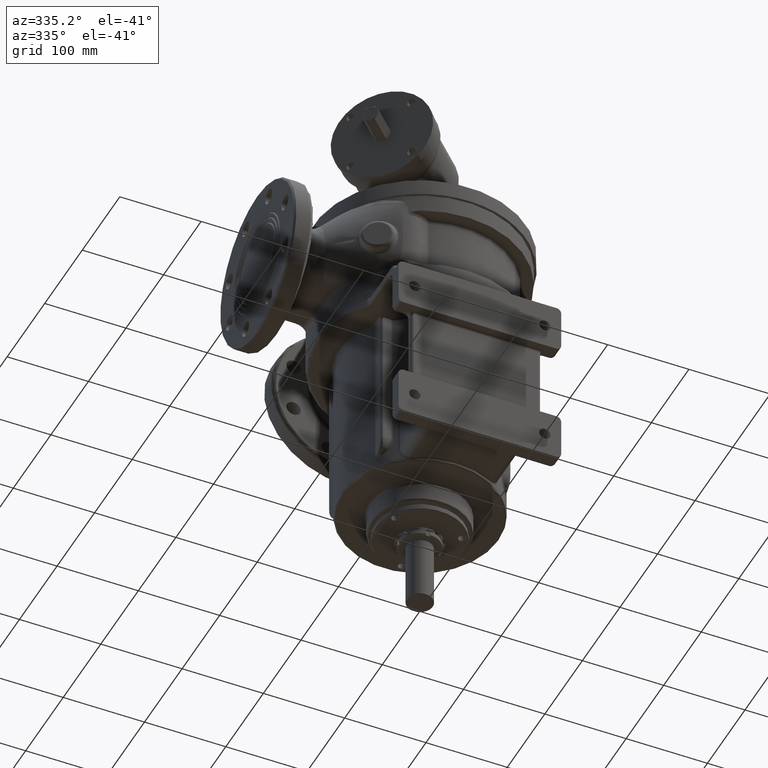
[diagram: clean part render]
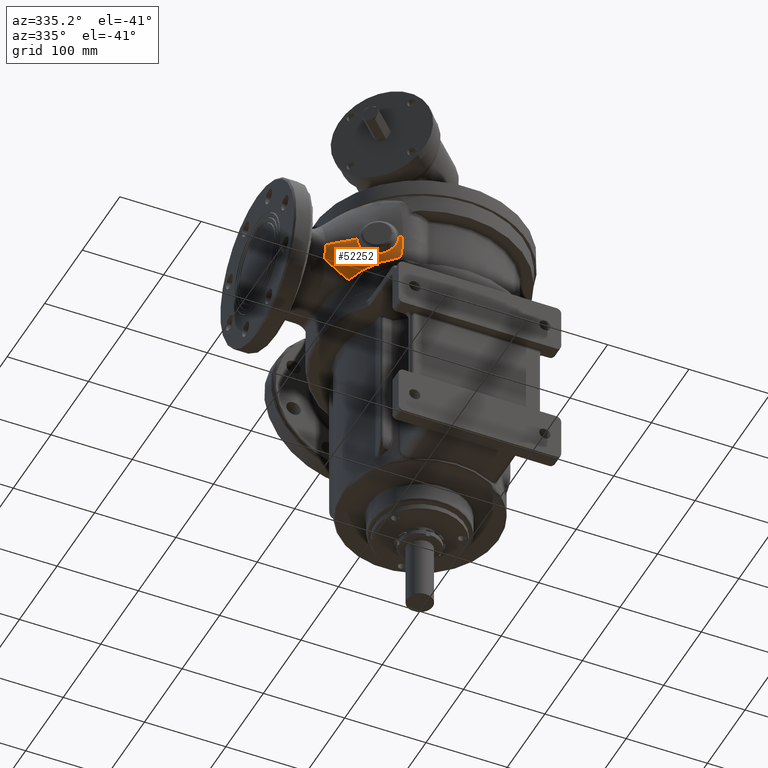
[diagram: same view with one face highlighted and labeled with its STEP entity id]
A machine part, auxiliary view. The second image highlights one B-rep face of the part: STEP entity #52252.
In plain terms, the highlighted face is a freeform B-spline surface patch.
Its self-contained STEP definition (entity closure, byte-faithful):
#9315=CARTESIAN_POINT('',(-1.427738902729E2,-5.596192475383E1,
5.803653388180E1));
#9316=CARTESIAN_POINT('',(-1.424543674433E2,-5.610395037650E1,
5.764194833409E1));
#9317=CARTESIAN_POINT('',(-1.418262739679E2,-5.637331069420E1,
5.687984051261E1));
#9318=CARTESIAN_POINT('',(-1.408964461575E2,-5.674336978189E1,
5.578368218104E1));
#9319=CARTESIAN_POINT('',(-1.400723715003E2,-5.705298128998E1,
5.484338024654E1));
#9320=CARTESIAN_POINT('',(-1.393336133533E2,-5.731668152984E1,
5.402325319070E1));
#9321=CARTESIAN_POINT('',(-1.386677749955E2,-5.753971763640E1,
5.329374492943E1));
#9322=CARTESIAN_POINT('',(-1.380703430665E2,-5.772856680078E1,
5.264657429174E1));
#9323=CARTESIAN_POINT('',(-1.375474731670E2,-5.789638644938E1,
5.210204591714E1));
#9324=CARTESIAN_POINT('',(-1.370534399638E2,-5.803912621642E1,
5.158000334313E1));
#9325=CARTESIAN_POINT('',(-1.365431093368E2,-5.817186378901E1,
5.103763201434E1));
#9326=CARTESIAN_POINT('',(-1.359551447960E2,-5.832282683100E1,
5.043162479195E1));
#9327=CARTESIAN_POINT('',(-1.352699263482E2,-5.848573112768E1,
4.973451730046E1));
#9328=CARTESIAN_POINT('',(-1.344967310827E2,-5.865520173903E1,
4.896281347430E1));
#9329=CARTESIAN_POINT('',(-1.336336161041E2,-5.883021588417E1,
4.812387508198E1));
#9330=CARTESIAN_POINT('',(-1.328012526969E2,-5.898453634591E1,
4.733092336191E1));
#9331=CARTESIAN_POINT('',(-1.319668320083E2,-5.912858811659E1,
4.655278896522E1));
#9332=CARTESIAN_POINT('',(-1.311293209388E2,-5.926194607892E1,
4.578648807431E1));
#9333=CARTESIAN_POINT('',(-1.302819702604E2,-5.938753944604E1,
4.502492513741E1));
#9334=CARTESIAN_POINT('',(-1.294106937141E2,-5.950914043619E1,
4.425539953702E1));
#9335=CARTESIAN_POINT('',(-1.284632660012E2,-5.963389718270E1,
4.343259672902E1));
#9336=CARTESIAN_POINT('',(-1.274500699581E2,-5.976037958098E1,
4.256720232050E1));
#9337=CARTESIAN_POINT('',(-1.264189845212E2,-5.988453451097E1,
4.169979440053E1));
#9338=CARTESIAN_POINT('',(-1.253671172280E2,-6.000845937364E1,
4.082620822019E1));
#9339=CARTESIAN_POINT('',(-1.242931223093E2,-6.013364808460E1,
3.994386537980E1));
#9340=CARTESIAN_POINT('',(-1.232001797327E2,-6.026203571636E1,
3.905452820071E1));
#9341=CARTESIAN_POINT('',(-1.220918030349E2,-6.039531483514E1,
3.815999469199E1));
#9342=CARTESIAN_POINT('',(-1.209828062562E2,-6.053311799033E1,
3.727076694306E1));
#9343=CARTESIAN_POINT('',(-1.198864524879E2,-6.067345813222E1,
3.639521700465E1));
#9344=CARTESIAN_POINT('',(-1.188106309450E2,-6.081340038192E1,
3.553696274147E1));
#9345=CARTESIAN_POINT('',(-1.177647628775E2,-6.095159502199E1,
3.470256129208E1));
#9346=CARTESIAN_POINT('',(-1.167575770458E2,-6.108858591968E1,
3.389938302007E1));
#9347=CARTESIAN_POINT('',(-1.161190228259E2,-6.117901027449E1,
3.339117644090E1));
#9348=CARTESIAN_POINT('',(-1.158082589123E2,-6.122375911361E1,
3.314391697442E1));
#10831=CARTESIAN_POINT('',(-1.158775579959E2,-8.357132170405E1,
7.600000083220E1));
#10832=CARTESIAN_POINT('',(-1.158775571862E2,-8.357132200548E1,
7.579882794861E1));
#10833=CARTESIAN_POINT('',(-1.158721146352E2,-8.357316565579E1,
7.539647214248E1));
#10834=CARTESIAN_POINT('',(-1.158475564527E2,-8.358155100635E1,
7.479227034010E1));
#10835=CARTESIAN_POINT('',(-1.158065098355E2,-8.359563241078E1,
7.418684883687E1));
#10836=CARTESIAN_POINT('',(-1.157487393589E2,-8.361552217957E1,
7.357993649901E1));
#10837=CARTESIAN_POINT('',(-1.156739850450E2,-8.364131605244E1,
7.297134233292E1));
#10838=CARTESIAN_POINT('',(-1.155819604421E2,-8.367317460820E1,
7.236080640795E1));
#10839=CARTESIAN_POINT('',(-1.154722321332E2,-8.371134109803E1,
7.174765107923E1));
#10840=CARTESIAN_POINT('',(-1.153442475263E2,-8.375611910503E1,
7.113137900651E1));
#10841=CARTESIAN_POINT('',(-1.151980547763E2,-8.380761239752E1,
7.051422995073E1));
#10842=CARTESIAN_POINT('',(-1.150339087205E2,-8.386586739067E1,
6.989832453846E1));
#10843=CARTESIAN_POINT('',(-1.148519250893E2,-8.393099435529E1,
6.928460162006E1));
#10844=CARTESIAN_POINT('',(-1.146522525786E2,-8.400311851593E1,
6.867392353597E1));
#10845=CARTESIAN_POINT('',(-1.144349935632E2,-8.408239765778E1,
6.806678442435E1));
#10846=CARTESIAN_POINT('',(-1.142002471147E2,-8.416902272034E1,
6.746371950356E1));
#10847=CARTESIAN_POINT('',(-1.139481670098E2,-8.426316154851E1,
6.686532084907E1));
#10848=CARTESIAN_POINT('',(-1.136788601758E2,-8.436501191765E1,
6.627199578621E1));
#10849=CARTESIAN_POINT('',(-1.133923933529E2,-8.447480353457E1,
6.568407904159E1));
#10850=CARTESIAN_POINT('',(-1.130887819097E2,-8.459279444307E1,
6.510178497262E1));
#10851=CARTESIAN_POINT('',(-1.127681457475E2,-8.471922661151E1,
6.452553519424E1));
#10852=CARTESIAN_POINT('',(-1.124310021606E2,-8.485420591683E1,
6.395640105769E1));
#10853=CARTESIAN_POINT('',(-1.120771963442E2,-8.499811180655E1,
6.339418997396E1));
#10854=CARTESIAN_POINT('',(-1.117085241723E2,-8.515058398033E1,
6.284208233398E1));
#10855=CARTESIAN_POINT('',(-1.113300544375E2,-8.530975011690E1,
6.230633868007E1));
#10856=CARTESIAN_POINT('',(-1.109189557420E2,-8.548567462632E1,
6.175697584928E1));
#10857=CARTESIAN_POINT('',(-1.105145456701E2,-8.566174537742E1,
6.124492551137E1));
#10858=CARTESIAN_POINT('',(-1.101060661051E2,-8.584315376215E1,
6.075657761514E1));
#10859=CARTESIAN_POINT('',(-1.097449723127E2,-8.600555479770E1,
6.034286523538E1));
#10860=CARTESIAN_POINT('',(-1.094191877290E2,-8.615481999473E1,
5.998666983995E1));
#10861=CARTESIAN_POINT('',(-1.091359945662E2,-8.628575036466E1,
5.968626002406E1));
#10862=CARTESIAN_POINT('',(-1.088049165044E2,-8.644133004583E1,
5.935004064989E1));
#10863=CARTESIAN_POINT('',(-1.084304051536E2,-8.661797952276E1,
5.897790473147E1));
#10864=CARTESIAN_POINT('',(-1.079862371831E2,-8.683173743427E1,
5.855608119410E1));
#10865=CARTESIAN_POINT('',(-1.074858007304E2,-8.707779578794E1,
5.810485762949E1));
#10866=CARTESIAN_POINT('',(-1.069714095827E2,-8.733633393635E1,
5.766547960633E1));
#10867=CARTESIAN_POINT('',(-1.064580876809E2,-8.759984293265E1,
5.724964952784E1));
#10868=CARTESIAN_POINT('',(-1.059361273532E2,-8.787342362225E1,
5.684917076805E1));
#10869=CARTESIAN_POINT('',(-1.054086184581E2,-8.815558485756E1,
5.646639995793E1));
#10870=CARTESIAN_POINT('',(-1.048750702335E2,-8.844662368484E1,
5.610079349545E1));
#10871=CARTESIAN_POINT('',(-1.043346012738E2,-8.874705870136E1,
5.575177135691E1));
#10872=CARTESIAN_POINT('',(-1.037896369927E2,-8.905552932067E1,
5.542087184734E1));
#10873=CARTESIAN_POINT('',(-1.032392326114E2,-8.937251437088E1,
5.510749873815E1));
#10874=CARTESIAN_POINT('',(-1.026846271254E2,-8.969721804327E1,
5.481237791242E1));
#10875=CARTESIAN_POINT('',(-1.021277366202E2,-9.002837576196E1,
5.453642760995E1));
#10876=CARTESIAN_POINT('',(-1.015682170164E2,-9.036603296752E1,
5.427949107477E1));
#10877=CARTESIAN_POINT('',(-1.010053489853E2,-9.071041396099E1,
5.404118479910E1));
#10878=CARTESIAN_POINT('',(-1.004397912030E2,-9.106090898269E1,
5.382181611367E1));
#10879=CARTESIAN_POINT('',(-9.987226970086E1,-9.141684732916E1,
5.362171561235E1));
#10880=CARTESIAN_POINT('',(-9.930385838207E1,-9.177729834868E1,
5.344125396224E1));
#10881=CARTESIAN_POINT('',(-9.873527039030E1,-9.214151390378E1,
5.328052421631E1));
#10882=CARTESIAN_POINT('',(-9.816713219681E1,-9.250879162526E1,
5.313956849021E1));
#10883=CARTESIAN_POINT('',(-9.759998519167E1,-9.287846968800E1,
5.301835129659E1));
#10884=CARTESIAN_POINT('',(-9.703429508836E1,-9.324993205690E1,
5.291679964606E1));
#10885=CARTESIAN_POINT('',(-9.647055570432E1,-9.362254160165E1,
5.283482208158E1));
#10886=CARTESIAN_POINT('',(-9.590926213852E1,-9.399565259097E1,
5.277226278372E1));
#10887=CARTESIAN_POINT('',(-9.535094544389E1,-9.436860025527E1,
5.272895482871E1));
#10888=CARTESIAN_POINT('',(-9.479626790926E1,-9.474063148937E1,
5.270467740043E1));
#10889=CARTESIAN_POINT('',(-9.424586876075E1,-9.511101723390E1,
5.269916415741E1));
#10890=CARTESIAN_POINT('',(-9.370024885449E1,-9.547912675475E1,
5.271208112849E1));
#10891=CARTESIAN_POINT('',(-9.315991051317E1,-9.584434344712E1,
5.274307033343E1));
#10892=CARTESIAN_POINT('',(-9.262528563703E1,-9.620610934011E1,
5.279172631062E1));
#10893=CARTESIAN_POINT('',(-9.209679906641E1,-9.656388929579E1,
5.285762284072E1));
#10894=CARTESIAN_POINT('',(-9.157479977706E1,-9.691721523686E1,
5.294030603564E1));
#10895=CARTESIAN_POINT('',(-9.105958537215E1,-9.726567287047E1,
5.303931163882E1));
#10896=CARTESIAN_POINT('',(-9.055142172555E1,-9.760889069290E1,
5.315416598755E1));
#10897=CARTESIAN_POINT('',(-9.005050027610E1,-9.794656580045E1,
5.328439723931E1));
#10898=CARTESIAN_POINT('',(-8.955700818376E1,-9.827841919086E1,
5.342953810998E1));
#10899=CARTESIAN_POINT('',(-8.907098232735E1,-9.860428939532E1,
5.358915386030E1));
#10900=CARTESIAN_POINT('',(-8.859248653481E1,-9.892401730392E1,
5.376282868720E1));
#10901=CARTESIAN_POINT('',(-8.812140549564E1,-9.923757816040E1,
5.395021537003E1));
#10902=CARTESIAN_POINT('',(-8.765758659909E1,-9.954498745062E1,
5.415102411562E1));
#10903=CARTESIAN_POINT('',(-8.720094778597E1,-9.984622554680E1,
5.436496039768E1));
#10904=CARTESIAN_POINT('',(-8.675150915253E1,-1.001412215660E2,
5.459171854588E1));
#10905=CARTESIAN_POINT('',(-8.630911185383E1,-1.004300353242E2,
5.483110243171E1));
#10906=CARTESIAN_POINT('',(-8.587327719349E1,-1.007129446110E2,
5.508314042130E1));
#10907=CARTESIAN_POINT('',(-8.544361343203E1,-1.009901804749E2,
5.534793142265E1));
#10908=CARTESIAN_POINT('',(-8.501968970121E1,-1.012619941701E2,
5.562560094769E1));
#10909=CARTESIAN_POINT('',(-8.460113265157E1,-1.015286067657E2,
5.591638255369E1));
#10910=CARTESIAN_POINT('',(-8.418774463858E1,-1.017901336216E2,
5.622047167856E1));
#10911=CARTESIAN_POINT('',(-8.377890535186E1,-1.020469644601E2,
5.653849314228E1));
#10912=CARTESIAN_POINT('',(-8.337392624151E1,-1.022995164015E2,
5.687119522016E1));
#10913=CARTESIAN_POINT('',(-8.297353019239E1,-1.025473247029E2,
5.721825977428E1));
#10914=CARTESIAN_POINT('',(-8.257818084316E1,-1.027901143316E2,
5.757959304631E1));
#10915=CARTESIAN_POINT('',(-8.218784641317E1,-1.030279247468E2,
5.795555948411E1));
#10916=CARTESIAN_POINT('',(-8.180305899038E1,-1.032604600247E2,
5.834602757804E1));
#10917=CARTESIAN_POINT('',(-8.142482871233E1,-1.034871627734E2,
5.875029237246E1));
#10918=CARTESIAN_POINT('',(-8.105048936584E1,-1.037096852014E2,
5.917162237050E1));
#10919=CARTESIAN_POINT('',(-8.067496338256E1,-1.039310167025E2,
5.961706288269E1));
#10920=CARTESIAN_POINT('',(-8.029948592677E1,-1.041503726985E2,
6.008694727222E1));
#10921=CARTESIAN_POINT('',(-7.993493178814E1,-1.043613437684E2,
6.056958289049E1));
#10922=CARTESIAN_POINT('',(-7.963451031500E1,-1.045337092388E2,
6.098855930242E1));
#10923=CARTESIAN_POINT('',(-7.937629624293E1,-1.046808346381E2,
6.136458497213E1));
#10924=CARTESIAN_POINT('',(-7.915488080642E1,-1.048062477528E2,
6.170005655329E1));
#10925=CARTESIAN_POINT('',(-7.895705049754E1,-1.049171781230E2,
6.200447527370E1));
#10926=CARTESIAN_POINT('',(-7.879261548479E1,-1.050087622388E2,
6.226792932450E1));
#10927=CARTESIAN_POINT('',(-7.861310623316E1,-1.051082356630E2,
6.256427009143E1));
#10928=CARTESIAN_POINT('',(-7.841379803014E1,-1.052180425250E2,
6.290673197042E1));
#10929=CARTESIAN_POINT('',(-7.819545668957E1,-1.053375311423E2,
6.329576243866E1));
#10930=CARTESIAN_POINT('',(-7.795352637909E1,-1.054687264561E2,
6.374544595514E1));
#10931=CARTESIAN_POINT('',(-7.767735203211E1,-1.056172444073E2,
6.429061470157E1));
#10932=CARTESIAN_POINT('',(-7.740656822710E1,-1.057612945014E2,
6.485899478870E1));
#10933=CARTESIAN_POINT('',(-7.715345314070E1,-1.058946379347E2,
6.542641517086E1));
#10934=CARTESIAN_POINT('',(-7.690905438868E1,-1.060222146590E2,
6.601224497749E1));
#10935=CARTESIAN_POINT('',(-7.667605450959E1,-1.061427304413E2,
6.661212432647E1));
#10936=CARTESIAN_POINT('',(-7.645497917298E1,-1.062560644839E2,
6.722607445211E1));
#10937=CARTESIAN_POINT('',(-7.624675498415E1,-1.063618881053E2,
6.785322655284E1));
#10938=CARTESIAN_POINT('',(-7.605276286607E1,-1.064596658190E2,
6.849086229119E1));
#10939=CARTESIAN_POINT('',(-7.587366238854E1,-1.065492426693E2,
6.913783932209E1));
#10940=CARTESIAN_POINT('',(-7.570974580180E1,-1.066306462656E2,
6.979424185694E1));
#10941=CARTESIAN_POINT('',(-7.556101810223E1,-1.067040356643E2,
7.046161728419E1));
#10942=CARTESIAN_POINT('',(-7.542811676034E1,-1.067692215936E2,
7.113936207454E1));
#10943=CARTESIAN_POINT('',(-7.531204981595E1,-1.068258365598E2,
7.182438761824E1));
#10944=CARTESIAN_POINT('',(-7.521345618009E1,-1.068736911431E2,
7.251396926575E1));
#10945=CARTESIAN_POINT('',(-7.513257245552E1,-1.069127726522E2,
7.320682789612E1));
#10946=CARTESIAN_POINT('',(-7.506949267726E1,-1.069431237524E2,
7.390261205406E1));
#10947=CARTESIAN_POINT('',(-7.502435184686E1,-1.069647466260E2,
7.460049965195E1));
#10948=CARTESIAN_POINT('',(-7.499727273346E1,-1.069777100568E2,
7.529949652881E1));
#10949=CARTESIAN_POINT('',(-7.499123571036E1,-1.069806189841E2,
7.576606037255E1));
#10950=CARTESIAN_POINT('',(-7.499123541319E1,-1.069806193350E2,
7.599998981527E1));
#10952=CARTESIAN_POINT('',(-7.499123541319E1,-1.069806193350E2,
7.599998981527E1));
#10953=CARTESIAN_POINT('',(-7.367283251621E1,-1.075519577248E2,
7.600000569618E1));
#10954=CARTESIAN_POINT('',(-7.235019315289E1,-1.081093147772E2,
7.600000138199E1));
#10955=CARTESIAN_POINT('',(-7.102405090617E1,-1.086523190198E2,
7.600003181907E1));
#10957=CARTESIAN_POINT('',(-7.312512800214E1,-1.066078058782E2,
4.621290486825E1));
#10958=CARTESIAN_POINT('',(-7.305440393708E1,-1.066990319515E2,
4.669131273841E1));
#10959=CARTESIAN_POINT('',(-7.291133480725E1,-1.068782386892E2,
4.767875219191E1));
#10960=CARTESIAN_POINT('',(-7.270103340952E1,-1.071300771630E2,
4.924796014705E1));
#10961=CARTESIAN_POINT('',(-7.249498790481E1,-1.073629673027E2,
5.090232048632E1));
#10962=CARTESIAN_POINT('',(-7.231535270098E1,-1.075544017261E2,
5.246241615974E1));
#10963=CARTESIAN_POINT('',(-7.217069989235E1,-1.077010131715E2,
5.380967615347E1));
#10964=CARTESIAN_POINT('',(-7.204993044491E1,-1.078183348150E2,
5.500226115453E1));
#10965=CARTESIAN_POINT('',(-7.194854163636E1,-1.079133481824E2,
5.605671166702E1));
#10966=CARTESIAN_POINT('',(-7.186222236391E1,-1.079919502838E2,
5.699693241526E1));
#10967=CARTESIAN_POINT('',(-7.178786143066E1,-1.080580458666E2,
5.784094671428E1));
#10968=CARTESIAN_POINT('',(-7.172332207848E1,-1.081142754077E2,
5.860288455303E1));
#10969=CARTESIAN_POINT('',(-7.166686778560E1,-1.081626161097E2,
5.929350079467E1));
#10970=CARTESIAN_POINT('',(-7.161725383215E1,-1.082045023410E2,
5.992127942842E1));
#10971=CARTESIAN_POINT('',(-7.157347200370E1,-1.082410070951E2,
6.049351471646E1));
#10972=CARTESIAN_POINT('',(-7.153471874350E1,-1.082729591408E2,
6.101630729366E1));
#10973=CARTESIAN_POINT('',(-7.150028346982E1,-1.083010576915E2,
6.149502114535E1));
#10974=CARTESIAN_POINT('',(-7.146961364499E1,-1.083258715604E2,
6.193181580750E1));
#10975=CARTESIAN_POINT('',(-7.144404161772E1,-1.083464351723E2,
6.231936689657E1));
#10976=CARTESIAN_POINT('',(-7.141929635147E1,-1.083660165374E2,
6.270934503658E1));
#10977=CARTESIAN_POINT('',(-7.139090743442E1,-1.083880447887E2,
6.315931947735E1));
#10978=CARTESIAN_POINT('',(-7.136136091112E1,-1.084109666078E2,
6.365882946411E1));
#10979=CARTESIAN_POINT('',(-7.133008308826E1,-1.084348240410E2,
6.421214210975E1));
#10980=CARTESIAN_POINT('',(-7.129778446219E1,-1.084592710071E2,
6.481934329531E1));
#10981=CARTESIAN_POINT('',(-7.126448717844E1,-1.084840726610E2,
6.548790475006E1));
#10982=CARTESIAN_POINT('',(-7.123050834685E1,-1.085090632099E2,
6.622494123158E1));
#10983=CARTESIAN_POINT('',(-7.119625477895E1,-1.085338988008E2,
6.703803048741E1));
#10984=CARTESIAN_POINT('',(-7.116220969334E1,-1.085581915531E2,
6.793727943647E1));
#10985=CARTESIAN_POINT('',(-7.112905903377E1,-1.085814392893E2,
6.893405597295E1));
#10986=CARTESIAN_POINT('',(-7.109762541512E1,-1.086031016668E2,
7.004187315696E1));
#10987=CARTESIAN_POINT('',(-7.106913217810E1,-1.086224285606E2,
7.127683015200E1));
#10988=CARTESIAN_POINT('',(-7.104531798497E1,-1.086383451256E2,
7.265824490209E1));
#10989=CARTESIAN_POINT('',(-7.102781038755E1,-1.086496144733E2,
7.420756183837E1));
#10990=CARTESIAN_POINT('',(-7.102407705052E1,-1.086523084866E2,
7.537912758164E1));
#10991=CARTESIAN_POINT('',(-7.102405090617E1,-1.086523190198E2,
7.600003181907E1));
#10993=CARTESIAN_POINT('',(-1.158082589123E2,-6.122375911361E1,
3.314391697442E1));
#10994=CARTESIAN_POINT('',(-1.156197121192E2,-6.170348083941E1,
3.326819164574E1));
#10995=CARTESIAN_POINT('',(-1.152215873950E2,-6.267801236231E1,
3.351931123534E1));
#10996=CARTESIAN_POINT('',(-1.145634370411E2,-6.419987262006E1,
3.391853908308E1));
#10997=CARTESIAN_POINT('',(-1.138606405168E2,-6.572764475297E1,
3.432350733611E1));
#10998=CARTESIAN_POINT('',(-1.131273886695E2,-6.723461717603E1,
3.472818078985E1));
#10999=CARTESIAN_POINT('',(-1.123630660546E2,-6.872124631709E1,
3.513073796505E1));
#11000=CARTESIAN_POINT('',(-1.115521304599E2,-7.021726698808E1,
3.553924583525E1));
#11001=CARTESIAN_POINT('',(-1.107024888950E2,-7.170594201705E1,
3.594912476789E1));
#11002=CARTESIAN_POINT('',(-1.098186694221E2,-7.317934147308E1,
3.635759552269E1));
#11003=CARTESIAN_POINT('',(-1.088926734840E2,-7.464975401864E1,
3.676743849066E1));
#11004=CARTESIAN_POINT('',(-1.079199005154E2,-7.612298162662E1,
3.718063685389E1));
#11005=CARTESIAN_POINT('',(-1.069059422526E2,-7.758926760848E1,
3.759484301638E1));
#11006=CARTESIAN_POINT('',(-1.058577495871E2,-7.903766906438E1,
3.800606463251E1));
#11007=CARTESIAN_POINT('',(-1.047668230465E2,-8.047954157464E1,
3.841759190142E1));
#11008=CARTESIAN_POINT('',(-1.036347480950E2,-8.191162145111E1,
3.882869935309E1));
#11009=CARTESIAN_POINT('',(-1.024630504329E2,-8.333110375401E1,
3.923857251584E1));
#11010=CARTESIAN_POINT('',(-1.012527973941E2,-8.473593094874E1,
3.964650370656E1));
#11011=CARTESIAN_POINT('',(-1.000001247663E2,-8.612972350014E1,
4.005374418458E1));
#11012=CARTESIAN_POINT('',(-9.871225858374E1,-8.750380903456E1,
4.045784816816E1));
#11013=CARTESIAN_POINT('',(-9.738808156492E1,-8.885891762540E1,
4.085851817526E1));
#11014=CARTESIAN_POINT('',(-9.602430078516E1,-9.019781529501E1,
4.125666044884E1));
#11015=CARTESIAN_POINT('',(-9.462361065152E1,-9.151724927086E1,
4.165133044605E1));
#11016=CARTESIAN_POINT('',(-9.318803309933E1,-9.281484953864E1,
4.204129350023E1));
#11017=CARTESIAN_POINT('',(-9.171355894362E1,-9.409373144858E1,
4.242745265813E1));
#11018=CARTESIAN_POINT('',(-9.020329885298E1,-9.535055511862E1,
4.280873964284E1));
#11019=CARTESIAN_POINT('',(-8.866188547832E1,-9.658120030189E1,
4.318345496683E1));
#11020=CARTESIAN_POINT('',(-8.708773241345E1,-9.778680526550E1,
4.355141657346E1));
#11021=CARTESIAN_POINT('',(-8.547743485322E1,-9.896954849343E1,
4.391264472366E1));
#11022=CARTESIAN_POINT('',(-8.382930800770E1,-1.001302197277E2,
4.426723392106E1));
#11023=CARTESIAN_POINT('',(-8.214244985743E1,-1.012688755119E2,
4.461450151640E1));
#11024=CARTESIAN_POINT('',(-8.041762716232E1,-1.023846236798E2,
4.495395799953E1));
#11025=CARTESIAN_POINT('',(-7.865448997252E1,-1.034771095625E2,
4.528418918815E1));
#11026=CARTESIAN_POINT('',(-7.685269275408E1,-1.045460317930E2,
4.560478121795E1));
#11027=CARTESIAN_POINT('',(-7.501199297753E1,-1.055910668913E2,
4.591518149160E1));
#11028=CARTESIAN_POINT('',(-7.375834217892E1,-1.062716721035E2,
4.611492180490E1));
#11029=CARTESIAN_POINT('',(-7.312512800214E1,-1.066078058782E2,
4.621290486825E1));
#11031=CARTESIAN_POINT('',(-1.427738902729E2,-5.596192475383E1,
5.803653388180E1));
#11032=CARTESIAN_POINT('',(-1.428062094831E2,-5.610274577464E1,
5.839203066911E1));
#11033=CARTESIAN_POINT('',(-1.428684472704E2,-5.637684854521E1,
5.910700025905E1));
#11034=CARTESIAN_POINT('',(-1.429582358317E2,-5.676569035283E1,
6.019971647777E1));
#11035=CARTESIAN_POINT('',(-1.430416667139E2,-5.712771528052E1,
6.129818459810E1));
#11036=CARTESIAN_POINT('',(-1.431193020439E2,-5.746349571213E1,
6.240447672764E1));
#11037=CARTESIAN_POINT('',(-1.431907483050E2,-5.777198680009E1,
6.351470876552E1));
#11038=CARTESIAN_POINT('',(-1.432560430333E2,-5.805314040802E1,
6.462784896306E1));
#11039=CARTESIAN_POINT('',(-1.433155770010E2,-5.830742489884E1,
6.574573029628E1));
#11040=CARTESIAN_POINT('',(-1.433693371363E2,-5.853592785503E1,
6.687236415610E1));
#11041=CARTESIAN_POINT('',(-1.434171010757E2,-5.873823586549E1,
6.800655985681E1));
#11042=CARTESIAN_POINT('',(-1.434585310825E2,-5.891358713216E1,
6.914392527246E1));
#11043=CARTESIAN_POINT('',(-1.434936185336E2,-5.906159059456E1,
7.028167678408E1));
#11044=CARTESIAN_POINT('',(-1.435224724782E2,-5.918242381396E1,
7.141957467826E1));
#11045=CARTESIAN_POINT('',(-1.435453523465E2,-5.927677981915E1,
7.256511517524E1));
#11046=CARTESIAN_POINT('',(-1.435616100222E2,-5.934438611582E1,
7.371446291960E1));
#11047=CARTESIAN_POINT('',(-1.435709883261E2,-5.938469837679E1,
7.485704921990E1));
#11048=CARTESIAN_POINT('',(-1.435731143452E2,-5.939359537396E1,
7.561973837306E1));
#11049=CARTESIAN_POINT('',(-1.435731150540E2,-5.939359466301E1,
7.600000089522E1));
#11051=CARTESIAN_POINT('',(-1.435731150540E2,-5.939359466301E1,
7.600000089522E1));
#11052=CARTESIAN_POINT('',(-1.430989801236E2,-5.988600012785E1,
7.600000146021E1));
#11053=CARTESIAN_POINT('',(-1.420967240184E2,-6.091689809431E1,
7.599999984407E1));
#11054=CARTESIAN_POINT('',(-1.400111196283E2,-6.301890277209E1,
7.599999952888E1));
#11055=CARTESIAN_POINT('',(-1.372650905969E2,-6.569936659912E1,
7.600000220561E1));
#11056=CARTESIAN_POINT('',(-1.338069254461E2,-6.893022344982E1,
7.599999383212E1));
#11057=CARTESIAN_POINT('',(-1.310606795010E2,-7.138204998769E1,
7.600000611658E1));
#11058=CARTESIAN_POINT('',(-1.291529799455E2,-7.303459018011E1,
7.599999797765E1));
#11059=CARTESIAN_POINT('',(-1.281828056691E2,-7.386490042013E1,
7.599999737897E1));
#11060=CARTESIAN_POINT('',(-1.271959855666E2,-7.469916856047E1,
7.600000177007E1));
#11061=CARTESIAN_POINT('',(-1.258603653457E2,-7.581439228582E1,
7.599999787150E1));
#11062=CARTESIAN_POINT('',(-1.241560231813E2,-7.721103879331E1,
7.600000167663E1));
#11063=CARTESIAN_POINT('',(-1.213544260956E2,-7.944868009965E1,
7.599999889169E1));
#11064=CARTESIAN_POINT('',(-1.185894704676E2,-8.157227470595E1,
7.599999863982E1));
#11065=CARTESIAN_POINT('',(-1.164846205206E2,-8.312770612627E1,
7.600000055989E1));
#11066=CARTESIAN_POINT('',(-1.158775579959E2,-8.357132170405E1,
7.600000083220E1));
#11493=CARTESIAN_POINT('',(-7.499123541319E1,-1.069806193350E2,
7.599998981527E1));
#11607=CARTESIAN_POINT('',(-1.158775579959E2,-8.357132170405E1,
7.600000083220E1));
#19766=VERTEX_POINT('',#10993);
#19767=VERTEX_POINT('',#11029);
#19770=VERTEX_POINT('',#10991);
#19776=VERTEX_POINT('',#9315);
#19909=VERTEX_POINT('',#11049);
#20088=VERTEX_POINT('',#11493);
#20089=VERTEX_POINT('',#11607);
#51525=CARTESIAN_POINT('',(-1.441438203977E2,-5.879313618026E1,
7.665228965578E1));
#51526=CARTESIAN_POINT('',(-1.434773210506E2,-5.949086580190E1,
7.664392580181E1));
#51527=CARTESIAN_POINT('',(-1.422821981938E2,-6.072512843492E1,
7.662919557909E1));
#51528=CARTESIAN_POINT('',(-1.399979115736E2,-6.302742391989E1,
7.660217318229E1));
#51529=CARTESIAN_POINT('',(-1.372551455056E2,-6.570481409559E1,
7.657177069912E1));
#51530=CARTESIAN_POINT('',(-1.338011607306E2,-6.893202235815E1,
7.653753468737E1));
#51531=CARTESIAN_POINT('',(-1.310575721901E2,-7.138175060866E1,
7.651389182423E1));
#51532=CARTESIAN_POINT('',(-1.291511188849E2,-7.303340443821E1,
7.649906703648E1));
#51533=CARTESIAN_POINT('',(-1.281814362474E2,-7.386339196319E1,
7.649185457500E1));
#51534=CARTESIAN_POINT('',(-1.271949779146E2,-7.469745248309E1,
7.648484443098E1));
#51535=CARTESIAN_POINT('',(-1.258597803769E2,-7.581245539830E1,
7.647570539337E1));
#51536=CARTESIAN_POINT('',(-1.241559263126E2,-7.720886958160E1,
7.646466935718E1));
#51537=CARTESIAN_POINT('',(-1.213549618821E2,-7.944627385657E1,
7.644784543590E1));
#51538=CARTESIAN_POINT('',(-1.177179390053E2,-8.223999922753E1,
7.642840853884E1));
#51539=CARTESIAN_POINT('',(-1.131469025534E2,-8.556387827277E1,
7.640767153365E1));
#51540=CARTESIAN_POINT('',(-1.083820195477E2,-8.883626779335E1,
7.638953269054E1));
#51541=CARTESIAN_POINT('',(-1.034377199831E2,-9.203548297293E1,
7.637409089621E1));
#51542=CARTESIAN_POINT('',(-9.833002923056E1,-9.514139741108E1,
7.636131125548E1));
#51543=CARTESIAN_POINT('',(-9.307656544117E1,-9.813553757756E1,
7.635096975468E1));
#51544=CARTESIAN_POINT('',(-8.769626813507E1,-1.010012238700E2,
7.634318754499E1));
#51545=CARTESIAN_POINT('',(-8.011603297191E1,-1.047629416345E2,
7.633495353337E1));
#51546=CARTESIAN_POINT('',(-7.422465423916E1,-1.073598968932E2,
7.633193861230E1));
#51547=CARTESIAN_POINT('',(-7.018006982905E1,-1.089956824509E2,
7.633100626351E1));
#51548=CARTESIAN_POINT('',(-1.441691592742E2,-5.878162968383E1,
7.575580813153E1));
#51549=CARTESIAN_POINT('',(-1.435021056543E2,-5.947973920029E1,
7.575888945892E1));
#51550=CARTESIAN_POINT('',(-1.423056869231E2,-6.071498792968E1,
7.576431118564E1));
#51551=CARTESIAN_POINT('',(-1.400181896241E2,-6.301984226415E1,
7.577423863866E1));
#51552=CARTESIAN_POINT('',(-1.372708052740E2,-6.570092189817E1,
7.578539481854E1));
#51553=CARTESIAN_POINT('',(-1.338109082732E2,-6.893258471247E1,
7.579791351599E1));
#51554=CARTESIAN_POINT('',(-1.310635597502E2,-7.138481779913E1,
7.580656855363E1));
#51555=CARTESIAN_POINT('',(-1.291553288726E2,-7.303745519600E1,
7.581197046251E1));
#51556=CARTESIAN_POINT('',(-1.281849400391E2,-7.386777219049E1,
7.581460260372E1));
#51557=CARTESIAN_POINT('',(-1.271979525584E2,-7.470200994984E1,
7.581716737917E1));
#51558=CARTESIAN_POINT('',(-1.258621211125E2,-7.581718479736E1,
7.582049853848E1));
#51559=CARTESIAN_POINT('',(-1.241575333299E2,-7.721375745549E1,
7.582453508925E1));
#51560=CARTESIAN_POINT('',(-1.213555953141E2,-7.945124387759E1,
7.583068380570E1));
#51561=CARTESIAN_POINT('',(-1.177177106154E2,-8.224479213911E1,
7.583781004358E1));
#51562=CARTESIAN_POINT('',(-1.131461646054E2,-8.556811543934E1,
7.584545794386E1));
#51563=CARTESIAN_POINT('',(-1.083812484764E2,-8.883970091560E1,
7.585217342244E1));
#51564=CARTESIAN_POINT('',(-1.034375507169E2,-9.203782545028E1,
7.585795866393E1));
#51565=CARTESIAN_POINT('',(-9.833097898788E1,-9.514250436029E1,
7.586282386088E1));
#51566=CARTESIAN_POINT('',(-9.307893755893E1,-9.813542297065E1,
7.586672421684E1));
#51567=CARTESIAN_POINT('',(-8.770039795718E1,-1.009999208088E2,
7.586995834604E1));
#51568=CARTESIAN_POINT('',(-8.012261242149E1,-1.047602557168E2,
7.587293100151E1));
#51569=CARTESIAN_POINT('',(-7.423255445809E1,-1.073567401265E2,
7.587430094846E1));
#51570=CARTESIAN_POINT('',(-7.018809602848E1,-1.089925815130E2,
7.587488413862E1));
#51571=CARTESIAN_POINT('',(-1.441967962808E2,-5.872474525811E1,
7.416586415463E1));
#51572=CARTESIAN_POINT('',(-1.435290489261E2,-5.942466165986E1,
7.418965370097E1));
#51573=CARTESIAN_POINT('',(-1.423308633139E2,-6.066359885321E1,
7.423157091108E1));
#51574=CARTESIAN_POINT('',(-1.400386186709E2,-6.297647930925E1,
7.430852112321E1));
#51575=CARTESIAN_POINT('',(-1.372841022959E2,-6.566788645435E1,
7.439522169374E1));
#51576=CARTESIAN_POINT('',(-1.338148976274E2,-6.891153640239E1,
7.449294949112E1));
#51577=CARTESIAN_POINT('',(-1.310616681407E2,-7.137095084495E1,
7.456058752889E1));
#51578=CARTESIAN_POINT('',(-1.291507530148E2,-7.302703384337E1,
7.460295464866E1));
#51579=CARTESIAN_POINT('',(-1.281793323850E2,-7.385876212653E1,
7.462358258999E1));
#51580=CARTESIAN_POINT('',(-1.271916374595E2,-7.469409831977E1,
7.464365266411E1));
#51581=CARTESIAN_POINT('',(-1.258550661167E2,-7.581053116701E1,
7.466977745970E1));
#51582=CARTESIAN_POINT('',(-1.241496319738E2,-7.720855500111E1,
7.470134631711E1));
#51583=CARTESIAN_POINT('',(-1.213467300797E2,-7.944793277388E1,
7.474940235497E1));
#51584=CARTESIAN_POINT('',(-1.177082472186E2,-8.224318510321E1,
7.480484390139E1));
#51585=CARTESIAN_POINT('',(-1.131369047101E2,-8.556765034387E1,
7.486380425318E1));
#51586=CARTESIAN_POINT('',(-1.083729585375E2,-8.883968243667E1,
7.491507110302E1));
#51587=CARTESIAN_POINT('',(-1.034312591366E2,-9.203748232039E1,
7.495850076094E1));
#51588=CARTESIAN_POINT('',(-9.832751497801E1,-9.514131587027E1,
7.499424742623E1));
#51589=CARTESIAN_POINT('',(-9.307875102268E1,-9.813317165954E1,
7.502267116863E1));
#51590=CARTESIAN_POINT('',(-8.770398853724E1,-1.009964407029E2,
7.504448881353E1));
#51591=CARTESIAN_POINT('',(-8.013138269737E1,-1.047552380194E2,
7.506584555499E1));
#51592=CARTESIAN_POINT('',(-7.424421991236E1,-1.073512709454E2,
7.507379157521E1));
#51593=CARTESIAN_POINT('',(-7.020034980059E1,-1.089873502046E2,
7.507629503443E1));
#51594=CARTESIAN_POINT('',(-1.441906431520E2,-5.849621412590E1,
7.121245610774E1));
#51595=CARTESIAN_POINT('',(-1.435227066379E2,-5.920331020260E1,
7.127453289784E1));
#51596=CARTESIAN_POINT('',(-1.423232206739E2,-6.045567633252E1,
7.138392653398E1));
#51597=CARTESIAN_POINT('',(-1.400256327431E2,-6.279535948006E1,
7.158475835163E1));
#51598=CARTESIAN_POINT('',(-1.372616607736E2,-6.551894678053E1,
7.181105455539E1));
#51599=CARTESIAN_POINT('',(-1.337792820966E2,-6.879897402973E1,
7.206618383572E1));
#51600=CARTESIAN_POINT('',(-1.310178540892E2,-7.128117619119E1,
7.224275629039E1));
#51601=CARTESIAN_POINT('',(-1.291035926729E2,-7.294949489023E1,
7.235339872364E1));
#51602=CARTESIAN_POINT('',(-1.281310350761E2,-7.378667227448E1,
7.240726736937E1));
#51603=CARTESIAN_POINT('',(-1.271428397622E2,-7.462672650113E1,
7.245967480830E1));
#51604=CARTESIAN_POINT('',(-1.258062102010E2,-7.574876459079E1,
7.252790246983E1));
#51605=CARTESIAN_POINT('',(-1.241007547345E2,-7.715348116705E1,
7.261031839555E1));
#51606=CARTESIAN_POINT('',(-1.212986248280E2,-7.940232159570E1,
7.273575706086E1));
#51607=CARTESIAN_POINT('',(-1.176621138495E2,-8.220756846132E1,
7.288040336348E1));
#51608=CARTESIAN_POINT('',(-1.130947528443E2,-8.554128653694E1,
7.303411581363E1));
#51609=CARTESIAN_POINT('',(-1.083359180222E2,-8.882035045618E1,
7.316769827632E1));
#51610=CARTESIAN_POINT('',(-1.034009133670E2,-9.202280577835E1,
7.328075945108E1));
#51611=CARTESIAN_POINT('',(-9.830511806054E1,-9.512940593580E1,
7.337372552028E1));
#51612=CARTESIAN_POINT('',(-9.306485839827E1,-9.812279450079E1,
7.344769847246E1));
#51613=CARTESIAN_POINT('',(-8.769923995769E1,-1.009865308764E2,
7.350416901418E1));
#51614=CARTESIAN_POINT('',(-8.013895248282E1,-1.047452906475E2,
7.356002371189E1));
#51615=CARTESIAN_POINT('',(-7.425893630789E1,-1.073416342766E2,
7.358061040115E1));
#51616=CARTESIAN_POINT('',(-7.021728520585E1,-1.089785655342E2,
7.358703113164E1));
#51617=CARTESIAN_POINT('',(-1.440993996767E2,-5.805246377464E1,
6.782044241541E1));
#51618=CARTESIAN_POINT('',(-1.434327195741E2,-5.877339546725E1,
6.792579610485E1));
#51619=CARTESIAN_POINT('',(-1.422343982508E2,-6.005080380790E1,
6.811145812043E1));
#51620=CARTESIAN_POINT('',(-1.399353141182E2,-6.243865735645E1,
6.845221908090E1));
#51621=CARTESIAN_POINT('',(-1.371655440270E2,-6.521819001031E1,
6.883609287237E1));
#51622=CARTESIAN_POINT('',(-1.336735722158E2,-6.856057346025E1,
6.926875604346E1));
#51623=CARTESIAN_POINT('',(-1.309064660390E2,-7.108268718150E1,
6.956813520863E1));
#51624=CARTESIAN_POINT('',(-1.289906528553E2,-7.277352776810E1,
6.975575592914E1));
#51625=CARTESIAN_POINT('',(-1.280178886413E2,-7.362106356728E1,
6.984710679486E1));
#51626=CARTESIAN_POINT('',(-1.270302766555E2,-7.447041767002E1,
6.993598413822E1));
#51627=CARTESIAN_POINT('',(-1.256954637151E2,-7.560363551283E1,
7.005169298188E1));
#51628=CARTESIAN_POINT('',(-1.239922263089E2,-7.702183758233E1,
7.019144814372E1));
#51629=CARTESIAN_POINT('',(-1.211947308284E2,-7.929018638719E1,
7.040416204355E1));
#51630=CARTESIAN_POINT('',(-1.175650785191E2,-8.211685207401E1,
7.064948571005E1));
#51631=CARTESIAN_POINT('',(-1.130077634341E2,-8.547163829851E1,
7.091035114518E1));
#51632=CARTESIAN_POINT('',(-1.082599157077E2,-8.876792978049E1,
7.113734356115E1));
#51633=CARTESIAN_POINT('',(-1.033372765233E2,-9.198356292190E1,
7.132981545808E1));
#51634=CARTESIAN_POINT('',(-9.825487207004E1,-9.509986888443E1,
7.148847002521E1));
#51635=CARTESIAN_POINT('',(-9.302821327718E1,-9.810035818001E1,
7.161518483718E1));
#51636=CARTESIAN_POINT('',(-8.767648078036E1,-1.009688709004E2,
7.171226400784E1));
#51637=CARTESIAN_POINT('',(-8.013460886435E1,-1.047320047414E2,
7.180924686041E1));
#51638=CARTESIAN_POINT('',(-7.426557374451E1,-1.073305888638E2,
7.184580276278E1));
#51639=CARTESIAN_POINT('',(-7.022822254536E1,-1.089692240796E2,
7.185777215161E1));
#51640=CARTESIAN_POINT('',(-1.438537436649E2,-5.723488417851E1,
6.379050525686E1));
#51641=CARTESIAN_POINT('',(-1.431910369559E2,-5.798113544229E1,
6.394636342086E1));
#51642=CARTESIAN_POINT('',(-1.419985616794E2,-5.930361879940E1,
6.422113512026E1));
#51643=CARTESIAN_POINT('',(-1.397055293545E2,-6.177641140964E1,
6.472548407355E1));
#51644=CARTESIAN_POINT('',(-1.369374241602E2,-6.465273605671E1,
6.529382363616E1));
#51645=CARTESIAN_POINT('',(-1.334433970297E2,-6.810215019361E1,
6.593462555952E1));
#51646=CARTESIAN_POINT('',(-1.306758406155E2,-7.069371628179E1,
6.637819590739E1));
#51647=CARTESIAN_POINT('',(-1.287620501149E2,-7.242489972029E1,
6.665629810037E1));
#51648=CARTESIAN_POINT('',(-1.277908982893E2,-7.329131894991E1,
6.679172890622E1));
#51649=CARTESIAN_POINT('',(-1.268059068674E2,-7.415796538192E1,
6.692351897732E1));
#51650=CARTESIAN_POINT('',(-1.254762745810E2,-7.531214939899E1,
6.709508848347E1));
#51651=CARTESIAN_POINT('',(-1.237792820345E2,-7.675573235139E1,
6.730226961696E1));
#51652=CARTESIAN_POINT('',(-1.209932526378E2,-7.906120128266E1,
6.761754704662E1));
#51653=CARTESIAN_POINT('',(-1.173790248478E2,-8.192928430780E1,
6.798108515746E1));
#51654=CARTESIAN_POINT('',(-1.128422533260E2,-8.532581030391E1,
6.836764931126E1));
#51655=CARTESIAN_POINT('',(-1.081155252645E2,-8.865714172931E1,
6.870419654883E1));
#51656=CARTESIAN_POINT('',(-1.032149811564E2,-9.190085960372E1,
6.898986168910E1));
#51657=CARTESIAN_POINT('',(-9.815526428156E1,-9.503904124232E1,
6.922569440476E1));
#51658=CARTESIAN_POINT('',(-9.295091049234E1,-9.805641959705E1,
6.941448270173E1));
#51659=CARTESIAN_POINT('',(-8.762115934062E1,-1.009373212666E2,
6.955951181982E1));
#51660=CARTESIAN_POINT('',(-8.010813221973E1,-1.047126749571E2,
6.970528821223E1));
#51661=CARTESIAN_POINT('',(-7.425674453504E1,-1.073169552369E2,
6.976111957929E1));
#51662=CARTESIAN_POINT('',(-7.022742666974E1,-1.089588198310E2,
6.978003647418E1));
#51663=CARTESIAN_POINT('',(-1.434755723215E2,-5.613596730094E1,
5.983979016431E1));
#51664=CARTESIAN_POINT('',(-1.428192173841E2,-5.691604159869E1,
6.004336107297E1));
#51665=CARTESIAN_POINT('',(-1.416368394306E2,-5.829830877879E1,
6.040238073633E1));
#51666=CARTESIAN_POINT('',(-1.393572972610E2,-6.088260013288E1,
6.106129471560E1));
#51667=CARTESIAN_POINT('',(-1.365989269616E2,-6.388479531404E1,
6.180389158377E1));
#51668=CARTESIAN_POINT('',(-1.331115921623E2,-6.747282841924E1,
6.264119969779E1));
#51669=CARTESIAN_POINT('',(-1.303494705230E2,-7.015496217875E1,
6.322084416704E1));
#51670=CARTESIAN_POINT('',(-1.284413310421E2,-7.193950692520E1,
6.358435306311E1));
#51671=CARTESIAN_POINT('',(-1.274735390386E2,-7.283111282916E1,
6.376140013532E1));
#51672=CARTESIAN_POINT('',(-1.264929607834E2,-7.372105610596E1,
6.393371729115E1));
#51673=CARTESIAN_POINT('',(-1.251712429290E2,-7.490365434740E1,
6.415802205523E1));
#51674=CARTESIAN_POINT('',(-1.234838014154E2,-7.638164245626E1,
6.442880498901E1));
#51675=CARTESIAN_POINT('',(-1.207147031665E2,-7.873766942158E1,
6.484075853111E1));
#51676=CARTESIAN_POINT('',(-1.171226863173E2,-8.166250124478E1,
6.531568638746E1));
#51677=CARTESIAN_POINT('',(-1.126146432701E2,-8.511681545827E1,
6.582088354210E1));
#51678=CARTESIAN_POINT('',(-1.079169013398E2,-8.849722547429E1,
6.626132288875E1));
#51679=CARTESIAN_POINT('',(-1.030458143079E2,-9.178109796546E1,
6.663609528067E1));
#51680=CARTESIAN_POINT('',(-9.801559851580E1,-9.495131397233E1,
6.694658407667E1));
#51681=CARTESIAN_POINT('',(-9.283976891108E1,-9.799397717881E1,
6.719635402871E1));
#51682=CARTESIAN_POINT('',(-8.753756006971E1,-1.008940181786E2,
6.738950807189E1));
#51683=CARTESIAN_POINT('',(-8.006040418259E1,-1.046887519687E2,
6.758570287075E1));
#51684=CARTESIAN_POINT('',(-7.423129941376E1,-1.073019067087E2,
6.766327941124E1));
#51685=CARTESIAN_POINT('',(-7.021298472289E1,-1.089483134151E2,
6.769114421122E1));
#51686=CARTESIAN_POINT('',(-1.430484795712E2,-5.499174791074E1,
5.662559552519E1));
#51687=CARTESIAN_POINT('',(-1.423995763504E2,-5.580676586E1,5.686621110862E1));
#51688=CARTESIAN_POINT('',(-1.412294290560E2,-5.725059408101E1,
5.729073346122E1));
#51689=CARTESIAN_POINT('',(-1.389677891816E2,-5.994900889223E1,
5.806984277778E1));
#51690=CARTESIAN_POINT('',(-1.362246830237E2,-6.307938362508E1,
5.894808537107E1));
#51691=CARTESIAN_POINT('',(-1.327505625886E2,-6.680829005920E1,
5.993850241078E1));
#51692=CARTESIAN_POINT('',(-1.299980556446E2,-6.958285841360E1,
6.062427833576E1));
#51693=CARTESIAN_POINT('',(-1.280977651542E2,-7.142232071570E1,
6.105446910724E1));
#51694=CARTESIAN_POINT('',(-1.271342890348E2,-7.233997262191E1,
6.126402595521E1));
#51695=CARTESIAN_POINT('',(-1.261589149184E2,-7.325416369729E1,
6.146802355488E1));
#51696=CARTESIAN_POINT('',(-1.248460062594E2,-7.446649057676E1,
6.173354542117E1));
#51697=CARTESIAN_POINT('',(-1.231692177690E2,-7.598043948023E1,
6.205399847333E1));
#51698=CARTESIAN_POINT('',(-1.204186182317E2,-7.838944577295E1,
6.254139725819E1));
#51699=CARTESIAN_POINT('',(-1.168505656398E2,-8.137387627227E1,
6.310320735461E1));
#51700=CARTESIAN_POINT('',(-1.123730513178E2,-8.488919377861E1,
6.370103628094E1));
#51701=CARTESIAN_POINT('',(-1.077058914806E2,-8.832172793583E1,
6.422292935668E1));
#51702=CARTESIAN_POINT('',(-1.028654632585E2,-9.164875327724E1,
6.466808649485E1));
#51703=CARTESIAN_POINT('',(-9.786555945390E1,-9.485389380394E1,
6.503816675383E1));
#51704=CARTESIAN_POINT('',(-9.271879160339E1,-9.792451082354E1,
6.533728491188E1));
#51705=CARTESIAN_POINT('',(-8.744432327217E1,-1.008461249283E2,
6.557011090625E1));
#51706=CARTESIAN_POINT('',(-8.000313288815E1,-1.046631127138E2,
6.580886995288E1));
#51707=CARTESIAN_POINT('',(-7.419663277998E1,-1.072865392756E2,
6.590603428417E1));
#51708=CARTESIAN_POINT('',(-7.019007198176E1,-1.089380228167E2,
6.594264744314E1));
#51709=CARTESIAN_POINT('',(-1.426926341438E2,-5.407352136147E1,
5.443055851450E1));
#51710=CARTESIAN_POINT('',(-1.420501089766E2,-5.491641723581E1,
5.469526444478E1));
#51711=CARTESIAN_POINT('',(-1.408905305463E2,-5.640930321471E1,
5.516240404134E1));
#51712=CARTESIAN_POINT('',(-1.386448462260E2,-5.919836784206E1,
5.601963674556E1));
#51713=CARTESIAN_POINT('',(-1.359159682122E2,-6.243029943964E1,
5.698597600462E1));
#51714=CARTESIAN_POINT('',(-1.324547294291E2,-6.627068176859E1,
5.807569100376E1));
#51715=CARTESIAN_POINT('',(-1.297113183617E2,-6.911852385400E1,
5.883020815595E1));
#51716=CARTESIAN_POINT('',(-1.278179907636E2,-7.100168701043E1,
5.930357469246E1));
#51717=CARTESIAN_POINT('',(-1.268582485571E2,-7.194011117249E1,
5.953418096912E1));
#51718=CARTESIAN_POINT('',(-1.258872268318E2,-7.287370998016E1,
5.975869471578E1));
#51719=CARTESIAN_POINT('',(-1.245814733992E2,-7.410992214333E1,
6.005089871285E1));
#51720=CARTESIAN_POINT('',(-1.229133680844E2,-7.565271960284E1,
6.040346652724E1));
#51721=CARTESIAN_POINT('',(-1.201777250788E2,-7.810426910279E1,
6.093959300939E1));
#51722=CARTESIAN_POINT('',(-1.166290229959E2,-8.113656413962E1,
6.155746854151E1));
#51723=CARTESIAN_POINT('',(-1.121761197790E2,-8.470099005012E1,
6.221517439421E1));
#51724=CARTESIAN_POINT('',(-1.075336849009E2,-8.817563464752E1,
6.279003708820E1));
#51725=CARTESIAN_POINT('',(-1.027179995192E2,-9.153778835156E1,
6.328147521533E1));
#51726=CARTESIAN_POINT('',(-9.774246925336E1,-9.477164085882E1,
6.369137010002E1));
#51727=CARTESIAN_POINT('',(-9.261900262256E1,-9.786547330052E1,
6.402415684211E1));
#51728=CARTESIAN_POINT('',(-8.736664712812E1,-1.008052377953E2,
6.428479415949E1));
#51729=CARTESIAN_POINT('',(-7.995402223286E1,-1.046411961848E2,
6.455441776125E1));
#51730=CARTESIAN_POINT('',(-7.416556168390E1,-1.072734883770E2,
6.466700233725E1));
#51731=CARTESIAN_POINT('',(-7.016863244208E1,-1.089293177206E2,
6.471111271291E1));
#51732=CARTESIAN_POINT('',(-1.424724254269E2,-5.351625545043E1,
5.319213147742E1));
#51733=CARTESIAN_POINT('',(-1.418339151524E2,-5.437600887782E1,
5.347004617379E1));
#51734=CARTESIAN_POINT('',(-1.406810138760E2,-5.589855100930E1,
5.396056912410E1));
#51735=CARTESIAN_POINT('',(-1.384455406396E2,-5.874234580980E1,
5.486068109524E1));
#51736=CARTESIAN_POINT('',(-1.357259282409E2,-6.203553829681E1,
5.587541030990E1));
#51737=CARTESIAN_POINT('',(-1.322732147671E2,-6.594314108152E1,
5.701971579528E1));
#51738=CARTESIAN_POINT('',(-1.295357565521E2,-6.883520412814E1,
5.781206061541E1));
#51739=CARTESIAN_POINT('',(-1.276468744737E2,-7.074478264099E1,
5.830920470206E1));
#51740=CARTESIAN_POINT('',(-1.266894921862E2,-7.169577403669E1,
5.855140751294E1));
#51741=CARTESIAN_POINT('',(-1.257211795537E2,-7.264113307371E1,
5.878722932143E1));
#51742=CARTESIAN_POINT('',(-1.244198129307E2,-7.389184580549E1,
5.909414243655E1));
#51743=CARTESIAN_POINT('',(-1.227570373089E2,-7.545214403128E1,
5.946441036605E1));
#51744=CARTESIAN_POINT('',(-1.200305299557E2,-7.792951317256E1,
6.002739170350E1));
#51745=CARTESIAN_POINT('',(-1.164936268766E2,-8.099085448691E1,
6.067616909638E1));
#51746=CARTESIAN_POINT('',(-1.120557005179E2,-8.458510428759E1,
6.136690944387E1));
#51747=CARTESIAN_POINT('',(-1.074283230177E2,-8.808535304175E1,
6.197106528933E1));
#51748=CARTESIAN_POINT('',(-1.026276962392E2,-9.146892794141E1,
6.248820236495E1));
#51749=CARTESIAN_POINT('',(-9.766698291870E1,-9.472036010983E1,
6.292032982053E1));
#51750=CARTESIAN_POINT('',(-9.255767317323E1,-9.782847055589E1,
6.327204992945E1));
#51751=CARTESIAN_POINT('',(-8.731873057311E1,-1.007794655685E2,
6.354846644807E1));
#51752=CARTESIAN_POINT('',(-7.992341616890E1,-1.046272423909E2,
6.383578633758E1));
#51753=CARTESIAN_POINT('',(-7.414592003884E1,-1.072651128290E2,
6.395742440205E1));
#51754=CARTESIAN_POINT('',(-7.015491143258E1,-1.089236832629E2,
6.400603716690E1));
#51755=CARTESIAN_POINT('',(-1.422979963424E2,-5.308127601985E1,
5.226978178911E1));
#51756=CARTESIAN_POINT('',(-1.416627027307E2,-5.395415814990E1,
5.255733132108E1));
#51757=CARTESIAN_POINT('',(-1.405151734184E2,-5.549979602874E1,
5.306493427621E1));
#51758=CARTESIAN_POINT('',(-1.382880179723E2,-5.838618915957E1,
5.399642970321E1));
#51759=CARTESIAN_POINT('',(-1.355760897938E2,-6.172705348817E1,
5.504668321168E1));
#51760=CARTESIAN_POINT('',(-1.321305855475E2,-6.568698357529E1,
5.623123423402E1));
#51761=CARTESIAN_POINT('',(-1.293981474560E2,-6.861351136032E1,
5.705159072730E1));
#51762=CARTESIAN_POINT('',(-1.275129445963E2,-7.054370737674E1,
5.756639131848E1));
#51763=CARTESIAN_POINT('',(-1.265574995473E2,-7.150451517321E1,
5.781721540496E1));
#51764=CARTESIAN_POINT('',(-1.255913812053E2,-7.245907221701E1,
5.806145418378E1));
#51765=CARTESIAN_POINT('',(-1.242935166844E2,-7.372114452899E1,
5.837932610652E1));
#51766=CARTESIAN_POINT('',(-1.226349945593E2,-7.529514702352E1,
5.876279484553E1));
#51767=CARTESIAN_POINT('',(-1.199157303946E2,-7.779274433659E1,
5.934583223993E1));
#51768=CARTESIAN_POINT('',(-1.163881321684E2,-8.087683985892E1,
6.001773159856E1));
#51769=CARTESIAN_POINT('',(-1.119619324857E2,-8.449445031090E1,
6.073322847795E1));
#51770=CARTESIAN_POINT('',(-1.073462919976E2,-8.801473920387E1,
6.135934435080E1));
#51771=CARTESIAN_POINT('',(-1.025573544447E2,-9.141507232513E1,
6.189572308078E1));
#51772=CARTESIAN_POINT('',(-9.760810844280E1,-9.468025066026E1,
6.234444176530E1));
#51773=CARTESIAN_POINT('',(-9.250974172338E1,-9.779951784609E1,
6.271021217230E1));
#51774=CARTESIAN_POINT('',(-8.728116169157E1,-1.007592891384E2,
6.299824827745E1));
#51775=CARTESIAN_POINT('',(-7.989923061834E1,-1.046163075621E2,
6.329846430097E1));
#51776=CARTESIAN_POINT('',(-7.413024912850E1,-1.072585441981E2,
6.342654192466E1));
#51777=CARTESIAN_POINT('',(-7.014387334526E1,-1.089192615025E2,
6.347829267551E1));
#51778=CARTESIAN_POINT('',(-1.421190900827E2,-5.263178119477E1,
5.136369759338E1));
#51779=CARTESIAN_POINT('',(-1.414871285441E2,-5.351822407362E1,
5.166054088845E1));
#51780=CARTESIAN_POINT('',(-1.403451176680E2,-5.508770549295E1,
5.218455328480E1));
#51781=CARTESIAN_POINT('',(-1.381263742807E2,-5.801800802246E1,
5.314594849117E1));
#51782=CARTESIAN_POINT('',(-1.354219981201E2,-6.140792338249E1,
5.422965248953E1));
#51783=CARTESIAN_POINT('',(-1.319832919935E2,-6.542156459733E1,
5.545145942036E1));
#51784=CARTESIAN_POINT('',(-1.292554915256E2,-6.838338564757E1,
5.629728696044E1));
#51785=CARTESIAN_POINT('',(-1.273737270528E2,-7.033467072983E1,
5.682797514609E1));
#51786=CARTESIAN_POINT('',(-1.264201034537E2,-7.130551531055E1,
5.708652429101E1));
#51787=CARTESIAN_POINT('',(-1.254560701639E2,-7.226947536383E1,
5.733827537645E1));
#51788=CARTESIAN_POINT('',(-1.241615741553E2,-7.354316041561E1,
5.766589091397E1));
#51789=CARTESIAN_POINT('',(-1.225071678082E2,-7.513115552945E1,
5.806102543707E1));
#51790=CARTESIAN_POINT('',(-1.197950007353E2,-7.764939018573E1,
5.866166320548E1));
#51791=CARTESIAN_POINT('',(-1.162766860531E2,-8.075668333504E1,
5.935367634950E1));
#51792=CARTESIAN_POINT('',(-1.118624721910E2,-8.439815933560E1,
6.009064567112E1));
#51793=CARTESIAN_POINT('',(-1.072590866309E2,-8.793903926249E1,
6.073599406896E1));
#51794=CARTESIAN_POINT('',(-1.024825412212E2,-9.135676051181E1,
6.128964813837E1));
#51795=CARTESIAN_POINT('',(-9.754555444938E1,-9.463638731179E1,
6.175387521345E1));
#51796=CARTESIAN_POINT('',(-9.245891908067E1,-9.776754932365E1,
6.213351576556E1));
#51797=CARTESIAN_POINT('',(-8.724141335197E1,-1.007368157297E2,
6.243382415897E1));
#51798=CARTESIAN_POINT('',(-7.987369539029E1,-1.046039697549E2,
6.274879191212E1));
#51799=CARTESIAN_POINT('',(-7.411366931811E1,-1.072510716116E2,
6.288554905485E1));
#51800=CARTESIAN_POINT('',(-7.013217413627E1,-1.089141788630E2,
6.294210814540E1));
#51801=CARTESIAN_POINT('',(-1.419561679117E2,-5.224141992164E1,
5.060367459374E1));
#51802=CARTESIAN_POINT('',(-1.413272456189E2,-5.313955336721E1,
5.090797845721E1));
#51803=CARTESIAN_POINT('',(-1.401903762356E2,-5.472960940609E1,
5.144530896990E1));
#51804=CARTESIAN_POINT('',(-1.379798613869E2,-5.769784804144E1,
5.243146690371E1));
#51805=CARTESIAN_POINT('',(-1.352834634002E2,-6.113024912546E1,
5.354367685094E1));
#51806=CARTESIAN_POINT('',(-1.318526620683E2,-6.519063195921E1,
5.479853773945E1));
#51807=CARTESIAN_POINT('',(-1.291304036240E2,-6.818336464815E1,
5.566792244387E1));
#51808=CARTESIAN_POINT('',(-1.272525575479E2,-7.015321335263E1,
5.621366932714E1));
#51809=CARTESIAN_POINT('',(-1.263009626147E2,-7.113291332046E1,
5.647961324951E1));
#51810=CARTESIAN_POINT('',(-1.253391585725E2,-7.210519623313E1,
5.673862472223E1));
#51811=CARTESIAN_POINT('',(-1.240480951084E2,-7.338919960501E1,
5.707573999720E1));
#51812=CARTESIAN_POINT('',(-1.223978463568E2,-7.498964005088E1,
5.748239259483E1));
#51813=CARTESIAN_POINT('',(-1.196926208130E2,-7.752627540588E1,
5.810067160072E1));
#51814=CARTESIAN_POINT('',(-1.161830473390E2,-8.065427602114E1,
5.881324077654E1));
#51815=CARTESIAN_POINT('',(-1.117795437952E2,-8.431699102414E1,
5.957238179262E1));
#51816=CARTESIAN_POINT('',(-1.071866515011E2,-8.787601280328E1,
6.023735605922E1));
#51817=CARTESIAN_POINT('',(-1.024203723899E2,-9.130881829599E1,
6.080796763481E1));
#51818=CARTESIAN_POINT('',(-9.749334235377E1,-9.460072933704E1,
6.128640591977E1));
#51819=CARTESIAN_POINT('',(-9.241617132697E1,-9.774178214769E1,
6.167754862031E1));
#51820=CARTESIAN_POINT('',(-8.720764033413E1,-1.007187847620E2,
6.198677354266E1));
#51821=CARTESIAN_POINT('',(-7.985158191975E1,-1.045940650034E2,
6.231077243023E1));
#51822=CARTESIAN_POINT('',(-7.409910177261E1,-1.072450205054E2,
6.245102492255E1));
#51823=CARTESIAN_POINT('',(-7.012178557961E1,-1.089100470569E2,
6.250884809622E1));
#51824=CARTESIAN_POINT('',(-1.418315802974E2,-5.192393987390E1,
5.001743558087E1));
#51825=CARTESIAN_POINT('',(-1.412050230637E2,-5.283165691928E1,
5.032757405022E1));
#51826=CARTESIAN_POINT('',(-1.400720195067E2,-5.443855131609E1,
5.087513293809E1));
#51827=CARTESIAN_POINT('',(-1.378672558288E2,-5.743772052700E1,
5.187964458751E1));
#51828=CARTESIAN_POINT('',(-1.351757820961E2,-6.090457744476E1,
5.301194296507E1));
#51829=CARTESIAN_POINT('',(-1.317490936484E2,-6.500255087507E1,
5.428845318766E1));
#51830=CARTESIAN_POINT('',(-1.290295292524E2,-6.801989943036E1,
5.517211526612E1));
#51831=CARTESIAN_POINT('',(-1.271537265033E2,-7.000443441799E1,
5.572657562717E1));
#51832=CARTESIAN_POINT('',(-1.262032266956E2,-7.099112026596E1,
5.599671880010E1));
#51833=CARTESIAN_POINT('',(-1.252426998422E2,-7.196994858915E1,
5.625977971485E1));
#51834=CARTESIAN_POINT('',(-1.239537410664E2,-7.326204052775E1,
5.660210384317E1));
#51835=CARTESIAN_POINT('',(-1.223060933379E2,-7.487220576997E1,
5.701490868844E1));
#51836=CARTESIAN_POINT('',(-1.196054503195E2,-7.742316642774E1,
5.764232380726E1));
#51837=CARTESIAN_POINT('',(-1.161020573887E2,-8.056724555077E1,
5.836512380177E1));
#51838=CARTESIAN_POINT('',(-1.117068442044E2,-8.424654727587E1,
5.913511396095E1));
#51839=CARTESIAN_POINT('',(-1.071227046239E2,-8.781999464474E1,
5.981003361155E1));
#51840=CARTESIAN_POINT('',(-1.023654704646E2,-9.126515182469E1,
6.039008850950E1));
#51841=CARTESIAN_POINT('',(-9.744749126310E1,-9.456751186263E1,
6.087772029957E1));
#51842=CARTESIAN_POINT('',(-9.237901275324E1,-9.771733054709E1,
6.127790890134E1));
#51843=CARTESIAN_POINT('',(-8.717865089700E1,-1.007014610197E2,
6.159598274168E1));
#51844=CARTESIAN_POINT('',(-7.983298438066E1,-1.045844723784E2,
6.193172596593E1));
#51845=CARTESIAN_POINT('',(-7.408696400003E1,-1.072391957622E2,
6.208006755369E1));
#51846=CARTESIAN_POINT('',(-7.011317739660E1,-1.089060633984E2,
6.214280664064E1));
#51847=CARTESIAN_POINT('',(-1.417218707042E2,-5.167946999578E1,
4.955766476120E1));
#51848=CARTESIAN_POINT('',(-1.410980110103E2,-5.259456376928E1,
4.987304703540E1));
#51849=CARTESIAN_POINT('',(-1.399695109035E2,-5.421443114332E1,
5.042985779161E1));
#51850=CARTESIAN_POINT('',(-1.377719117543E2,-5.723746646586E1,
5.145124930863E1));
#51851=CARTESIAN_POINT('',(-1.350871585976E2,-6.073097402639E1,
5.260239713919E1));
#51852=CARTESIAN_POINT('',(-1.316665889420E2,-6.485812701858E1,
5.389972892731E1));
#51853=CARTESIAN_POINT('',(-1.289508208934E2,-6.789465652524E1,
5.479740923258E1));
#51854=CARTESIAN_POINT('',(-1.270775233787E2,-6.989066035715E1,
5.536048875042E1));
#51855=CARTESIAN_POINT('',(-1.261282896980E2,-7.088280676046E1,
5.563479536236E1));
#51856=CARTESIAN_POINT('',(-1.251691241555E2,-7.186675859040E1,
5.590187579621E1));
#51857=CARTESIAN_POINT('',(-1.238822287437E2,-7.316519341277E1,
5.624937476058E1));
#51858=CARTESIAN_POINT('',(-1.222370425937E2,-7.478297741010E1,
5.666829137396E1));
#51859=CARTESIAN_POINT('',(-1.195404622767E2,-7.734514861851E1,
5.730474204348E1));
#51860=CARTESIAN_POINT('',(-1.160421563996E2,-8.050175151564E1,
5.803748878537E1));
#51861=CARTESIAN_POINT('',(-1.116532934077E2,-8.419383293180E1,
5.881749807821E1));
#51862=CARTESIAN_POINT('',(-1.070755816115E2,-8.777822779506E1,
5.950085361900E1));
#51863=CARTESIAN_POINT('',(-1.023248644486E2,-9.123261122927E1,
6.008810049072E1));
#51864=CARTESIAN_POINT('',(-9.741339060070E1,-9.454267190332E1,
6.058199654012E1));
#51865=CARTESIAN_POINT('',(-9.235120625003E1,-9.769889842626E1,
6.098778559009E1));
#51866=CARTESIAN_POINT('',(-8.715683380935E1,-1.006882326243E2,
6.131096982659E1));
#51867=CARTESIAN_POINT('',(-7.981888977501E1,-1.045769217433E2,
6.165322497881E1));
#51868=CARTESIAN_POINT('',(-7.407776539040E1,-1.072344837102E2,
6.180595253764E1));
#51869=CARTESIAN_POINT('',(-7.010667114452E1,-1.089027693301E2,
6.187141374239E1));
#51870=CARTESIAN_POINT('',(-1.415977282592E2,-5.142862276071E1,
4.908409614108E1));
#51871=CARTESIAN_POINT('',(-1.409772697171E2,-5.235125000262E1,
4.940511471499E1));
#51872=CARTESIAN_POINT('',(-1.398545271869E2,-5.398438200207E1,
4.997195158354E1));
#51873=CARTESIAN_POINT('',(-1.376664222779E2,-5.703186794889E1,
5.101195665100E1));
#51874=CARTESIAN_POINT('',(-1.349910124940E2,-6.055276317667E1,
5.218435914916E1));
#51875=CARTESIAN_POINT('',(-1.315793944127E2,-6.471004399122E1,
5.350586410397E1));
#51876=CARTESIAN_POINT('',(-1.288692130394E2,-6.776648497306E1,
5.442027871311E1));
#51877=CARTESIAN_POINT('',(-1.269994490249E2,-6.977443689984E1,
5.499380096232E1));
#51878=CARTESIAN_POINT('',(-1.260519619982E2,-7.077228100934E1,
5.527318144140E1));
#51879=CARTESIAN_POINT('',(-1.250946035266E2,-7.176159027237E1,
5.554518660737E1));
#51880=CARTESIAN_POINT('',(-1.238103189640E2,-7.306667465770E1,
5.589905787133E1));
#51881=CARTESIAN_POINT('',(-1.221681944346E2,-7.469244771315E1,
5.632555488571E1));
#51882=CARTESIAN_POINT('',(-1.194764566593E2,-7.726638290772E1,
5.697329768643E1));
#51883=CARTESIAN_POINT('',(-1.159838849245E2,-8.043610654387E1,
5.771856675519E1));
#51884=CARTESIAN_POINT('',(-1.116016886223E2,-8.414148041638E1,
5.851109778337E1));
#51885=CARTESIAN_POINT('',(-1.070303670075E2,-8.773710799597E1,
5.920464108734E1));
#51886=CARTESIAN_POINT('',(-1.022859013047E2,-9.120079157855E1,
5.979999099465E1));
#51887=CARTESIAN_POINT('',(-9.738056445630E1,-9.451846481122E1,
6.030022241811E1));
#51888=CARTESIAN_POINT('',(-9.232430453247E1,-9.768091578051E1,
6.071093102890E1));
#51889=CARTESIAN_POINT('',(-8.713561351020E1,-1.006752439720E2,
6.103794371735E1));
#51890=CARTESIAN_POINT('',(-7.980508693153E1,-1.045693568032E2,
6.138436671406E1));
#51891=CARTESIAN_POINT('',(-7.406876496378E1,-1.072296607237E2,
6.153933402020E1));
#51892=CARTESIAN_POINT('',(-7.010032708589E1,-1.088993464998E2,
6.160609698810E1));
#51893=CARTESIAN_POINT('',(-1.414289059695E2,-5.108950738677E1,
4.846116515337E1));
#51894=CARTESIAN_POINT('',(-1.408130518799E2,-5.202226798051E1,
4.878925401354E1));
#51895=CARTESIAN_POINT('',(-1.396981139870E2,-5.367324569318E1,
4.936869006585E1));
#51896=CARTESIAN_POINT('',(-1.375229221274E2,-5.675362586740E1,
5.043214492579E1));
#51897=CARTESIAN_POINT('',(-1.348602884514E2,-6.031137133103E1,
5.163142526258E1));
#51898=CARTESIAN_POINT('',(-1.314610148009E2,-6.450920059198E1,
5.298365955580E1));
#51899=CARTESIAN_POINT('',(-1.287585995818E2,-6.759245511373E1,
5.391946859922E1));
#51900=CARTESIAN_POINT('',(-1.268937575935E2,-6.961650702890E1,
5.450639326321E1));
#51901=CARTESIAN_POINT('',(-1.259487043435E2,-7.062203124232E1,
5.479229650979E1));
#51902=CARTESIAN_POINT('',(-1.249938586698E2,-7.161856579857E1,
5.507064409001E1));
#51903=CARTESIAN_POINT('',(-1.237131887584E2,-7.293262457570E1,
5.543273595849E1));
#51904=CARTESIAN_POINT('',(-1.220753115359E2,-7.456918204156E1,
5.586903542584E1));
#51905=CARTESIAN_POINT('',(-1.193902842892E2,-7.715900944629E1,
5.653143156612E1));
#51906=CARTESIAN_POINT('',(-1.159056543704E2,-8.034647863543E1,
5.729304838023E1));
#51907=CARTESIAN_POINT('',(-1.115326516289E2,-8.406986742229E1,
5.810207823209E1));
#51908=CARTESIAN_POINT('',(-1.069700948656E2,-8.768075053749E1,
5.880919245895E1));
#51909=CARTESIAN_POINT('',(-1.022341420440E2,-9.115709280376E1,
5.941546750378E1));
#51910=CARTESIAN_POINT('',(-9.733709998709E1,-9.448514763003E1,
5.992434386229E1));
#51911=CARTESIAN_POINT('',(-9.228879547036E1,-9.765609861291E1,
6.034183232008E1));
#51912=CARTESIAN_POINT('',(-8.710769228815E1,-1.006572558754E2,
6.067415048548E1));
#51913=CARTESIAN_POINT('',(-7.978703141751E1,-1.045587982410E2,
6.102633766554E1));
#51914=CARTESIAN_POINT('',(-7.405706647315E1,-1.072228730609E2,
6.118433672387E1));
#51915=CARTESIAN_POINT('',(-7.009213616399E1,-1.088944956677E2,
6.125281167391E1));
#51916=CARTESIAN_POINT('',(-1.412113808893E2,-5.065650336623E1,
4.769568009516E1));
#51917=CARTESIAN_POINT('',(-1.406015056309E2,-5.160213646782E1,
4.803203224959E1));
#51918=CARTESIAN_POINT('',(-1.394967033037E2,-5.327578701212E1,
4.862620845444E1));
#51919=CARTESIAN_POINT('',(-1.373383134862E2,-5.639794649293E1,
4.971712433300E1));
#51920=CARTESIAN_POINT('',(-1.346923466891E2,-6.000248785152E1,
5.094792786748E1));
#51921=CARTESIAN_POINT('',(-1.313092412173E2,-6.425180200334E1,
5.233627183039E1));
#51922=CARTESIAN_POINT('',(-1.286170296596E2,-6.736910677730E1,
5.329727519397E1));
#51923=CARTESIAN_POINT('',(-1.267586526963E2,-6.941361247665E1,
5.390000954833E1));
#51924=CARTESIAN_POINT('',(-1.258167945049E2,-7.042889601151E1,
5.419361319779E1));
#51925=CARTESIAN_POINT('',(-1.248652377048E2,-7.143461703968E1,
5.447945542779E1));
#51926=CARTESIAN_POINT('',(-1.235892730940E2,-7.276009590045E1,
5.485126978476E1));
#51927=CARTESIAN_POINT('',(-1.219569344835E2,-7.441037504830E1,
5.529917300515E1));
#51928=CARTESIAN_POINT('',(-1.192806462780E2,-7.702043459608E1,
5.597894384560E1));
#51929=CARTESIAN_POINT('',(-1.158063599003E2,-8.023051451269E1,
5.676000635612E1));
#51930=CARTESIAN_POINT('',(-1.114453051427E2,-8.397690821340E1,
5.758878824945E1));
#51931=CARTESIAN_POINT('',(-1.068941116149E2,-8.760732952717E1,
5.831231010880E1));
#51932=CARTESIAN_POINT('',(-1.021691434323E2,-9.109994730409E1,
5.893198235326E1));
#51933=CARTESIAN_POINT('',(-9.728273917045E1,-9.444140833600E1,
5.945166054424E1));
#51934=CARTESIAN_POINT('',(-9.224457233521E1,-9.762338145652E1,
5.987781690042E1));
#51935=CARTESIAN_POINT('',(-8.707307541683E1,-1.006334318154E2,
6.021709726670E1));
#51936=CARTESIAN_POINT('',(-7.976482973048E1,-1.045446907781E2,
6.057704983187E1));
#51937=CARTESIAN_POINT('',(-7.404280059612E1,-1.072137292112E2,
6.073929810631E1));
#51938=CARTESIAN_POINT('',(-7.008223295036E1,-1.088879143762E2,
6.081019215635E1));
#51939=CARTESIAN_POINT('',(-1.409256725200E2,-5.011877281381E1,
4.677808121670E1));
#51940=CARTESIAN_POINT('',(-1.403242606352E2,-5.108033082453E1,
4.712431856751E1));
#51941=CARTESIAN_POINT('',(-1.392338384902E2,-5.278204667879E1,
4.773617869109E1));
#51942=CARTESIAN_POINT('',(-1.370995141276E2,-5.595593620343E1,
4.886023399295E1));
#51943=CARTESIAN_POINT('',(-1.344776433530E2,-5.961845783167E1,
5.012931514322E1));
#51944=CARTESIAN_POINT('',(-1.311180258467E2,-6.393161538445E1,
5.156174733535E1));
#51945=CARTESIAN_POINT('',(-1.284404848035E2,-6.709118346902E1,
5.255359082233E1));
#51946=CARTESIAN_POINT('',(-1.265912311349E2,-6.916109479318E1,
5.317567161961E1));
#51947=CARTESIAN_POINT('',(-1.256538407583E2,-7.018850465992E1,
5.347869529300E1));
#51948=CARTESIAN_POINT('',(-1.247068131783E2,-7.120565038767E1,
5.377370120528E1));
#51949=CARTESIAN_POINT('',(-1.234371998762E2,-7.254535203137E1,
5.415739696641E1));
#51950=CARTESIAN_POINT('',(-1.218122855472E2,-7.421270427845E1,
5.461945550751E1));
#51951=CARTESIAN_POINT('',(-1.191475119995E2,-7.684792929228E1,
5.532035698636E1));
#51952=CARTESIAN_POINT('',(-1.156865660418E2,-8.008608675343E1,
5.612490652050E1));
#51953=CARTESIAN_POINT('',(-1.113405199194E2,-8.386097854924E1,
5.697722372786E1));
#51954=CARTESIAN_POINT('',(-1.068033326128E2,-8.751553292340E1,
5.771993099044E1));
#51955=CARTESIAN_POINT('',(-1.020917299245E2,-9.102821780336E1,
5.835491978555E1));
#51956=CARTESIAN_POINT('',(-9.721817347604E1,-9.438620747651E1,
5.888665831490E1));
#51957=CARTESIAN_POINT('',(-9.219220704538E1,-9.758179743818E1,
5.932229308363E1));
#51958=CARTESIAN_POINT('',(-8.703224786913E1,-1.006028877755E2,
5.966909327683E1));
#51959=CARTESIAN_POINT('',(-7.973888739493E1,-1.045263002398E2,
6.003744690980E1));
#51960=CARTESIAN_POINT('',(-7.402634091502E1,-1.072016492880E2,
6.020445235472E1));
#51961=CARTESIAN_POINT('',(-7.007096288659E1,-1.088791285245E2,
6.027819026173E1));
#51962=CARTESIAN_POINT('',(-1.406199346217E2,-4.956449536314E1,
4.587145691003E1));
#51963=CARTESIAN_POINT('',(-1.400279544455E2,-5.054236937771E1,
4.622703750375E1));
#51964=CARTESIAN_POINT('',(-1.389535840780E2,-5.227285667216E1,
4.685567601821E1));
#51965=CARTESIAN_POINT('',(-1.368462882710E2,-5.549979057316E1,
4.801137861864E1));
#51966=CARTESIAN_POINT('',(-1.342516589578E2,-5.922180080854E1,
4.931729014479E1));
#51967=CARTESIAN_POINT('',(-1.309187326496E2,-6.360050892816E1,
5.079247266466E1));
#51968=CARTESIAN_POINT('',(-1.282578215258E2,-6.680350692352E1,
5.181438882262E1));
#51969=CARTESIAN_POINT('',(-1.264188213533E2,-6.889954434260E1,
5.245537819289E1));
#51970=CARTESIAN_POINT('',(-1.254864297526E2,-6.993942897613E1,
5.276761673463E1));
#51971=CARTESIAN_POINT('',(-1.245444246851E2,-7.096833801531E1,
5.307159449417E1));
#51972=CARTESIAN_POINT('',(-1.232817631375E2,-7.232270479834E1,
5.346693203362E1));
#51973=CARTESIAN_POINT('',(-1.216649519354E2,-7.400765130511E1,
5.394286422781E1));
#51974=CARTESIAN_POINT('',(-1.190126195227E2,-7.666881599528E1,
5.466447981233E1));
#51975=CARTESIAN_POINT('',(-1.155659121274E2,-7.993590363034E1,
5.549203777329E1));
#51976=CARTESIAN_POINT('',(-1.112356106134E2,-8.374015469422E1,
5.636735187850E1));
#51977=CARTESIAN_POINT('',(-1.067129148689E2,-8.741956429757E1,
5.712872748086E1));
#51978=CARTESIAN_POINT('',(-1.020149804398E2,-9.095292986699E1,
5.777854907619E1));
#51979=CARTESIAN_POINT('',(-9.715444588510E1,-9.432798199178E1,
5.832191733678E1));
#51980=CARTESIAN_POINT('',(-9.214076675134E1,-9.753766531126E1,
5.876667233488E1));
#51981=CARTESIAN_POINT('',(-8.699236934304E1,-1.005702311672E2,
5.912072513322E1));
#51982=CARTESIAN_POINT('',(-7.971386033121E1,-1.045063534762E2,
5.949724755189E1));
#51983=CARTESIAN_POINT('',(-7.401071467902E1,-1.071883857670E2,
5.966899183646E1));
#51984=CARTESIAN_POINT('',(-7.006045331708E1,-1.088693889614E2,
5.974561989353E1));
#51985=CARTESIAN_POINT('',(-1.401877331917E2,-4.880390446390E1,
4.468112080045E1));
#51986=CARTESIAN_POINT('',(-1.396094862328E2,-4.980402430589E1,
4.504825744659E1));
#51987=CARTESIAN_POINT('',(-1.385585166745E2,-5.157376380178E1,
4.569774119442E1));
#51988=CARTESIAN_POINT('',(-1.364908075176E2,-5.487308457769E1,
4.689305147240E1));
#51989=CARTESIAN_POINT('',(-1.339362736111E2,-5.867632572596E1,
4.824545041214E1));
#51990=CARTESIAN_POINT('',(-1.306427894154E2,-6.314460471065E1,
4.977506236037E1));
#51991=CARTESIAN_POINT('',(-1.280064212381E2,-6.640699412929E1,
5.083551230172E1));
#51992=CARTESIAN_POINT('',(-1.261824670039E2,-6.853878418347E1,
5.150079829659E1));
#51993=CARTESIAN_POINT('',(-1.252573881397E2,-6.959574587622E1,
5.182489045717E1));
#51994=CARTESIAN_POINT('',(-1.243226820519E2,-7.064077199200E1,
5.214042220740E1));
#51995=CARTESIAN_POINT('',(-1.230700198994E2,-7.201526081767E1,
5.255076788899E1));
#51996=CARTESIAN_POINT('',(-1.214648441890E2,-7.372433601252E1,
5.304459607584E1));
#51997=CARTESIAN_POINT('',(-1.188302415791E2,-7.642108603662E1,
5.379295129944E1));
#51998=CARTESIAN_POINT('',(-1.154036454144E2,-7.972785496904E1,
5.465022260664E1));
#51999=CARTESIAN_POINT('',(-1.110952897081E2,-8.357238838306E1,
5.555522377499E1));
#52000=CARTESIAN_POINT('',(-1.065925757601E2,-8.728590966645E1,
5.634067684003E1));
#52001=CARTESIAN_POINT('',(-1.019133045309E2,-9.084769040553E1,
5.700962541346E1));
#52002=CARTESIAN_POINT('',(-9.707040716278E1,-9.424623366960E1,
5.756801516639E1));
#52003=CARTESIAN_POINT('',(-9.207326764008E1,-9.747537212395E1,
5.802460681429E1));
#52004=CARTESIAN_POINT('',(-8.694035286774E1,-1.005238422480E2,
5.838816240229E1));
#52005=CARTESIAN_POINT('',(-7.968163918783E1,-1.044776740630E2,
5.877554020168E1));
#52006=CARTESIAN_POINT('',(-7.399093939863E1,-1.071691183658E2,
5.895376829280E1));
#52007=CARTESIAN_POINT('',(-7.004741558923E1,-1.088551275780E2,
5.903441870097E1));
#52008=CARTESIAN_POINT('',(-1.396026603275E2,-4.781349911800E1,
4.323130850681E1));
#52009=CARTESIAN_POINT('',(-1.390436854537E2,-4.884229936932E1,
4.361104023766E1));
#52010=CARTESIAN_POINT('',(-1.380256006291E2,-5.066269429270E1,
4.428343882102E1));
#52011=CARTESIAN_POINT('',(-1.360138459146E2,-5.405548266510E1,
4.552291258482E1));
#52012=CARTESIAN_POINT('',(-1.335163160934E2,-5.796371915361E1,
4.692796976075E1));
#52013=CARTESIAN_POINT('',(-1.302791458633E2,-6.254789569584E1,
4.852018287984E1));
#52014=CARTESIAN_POINT('',(-1.276777436054E2,-6.588721272985E1,
4.962541031625E1));
#52015=CARTESIAN_POINT('',(-1.258750748188E2,-6.806535027894E1,
5.031904076736E1));
#52016=CARTESIAN_POINT('',(-1.249603029293E2,-6.914445850867E1,
5.065698161618E1));
#52017=CARTESIAN_POINT('',(-1.240358011021E2,-7.021041107130E1,
5.098603202162E1));
#52018=CARTESIAN_POINT('',(-1.227969391800E2,-7.161108192477E1,
5.141396415134E1));
#52019=CARTESIAN_POINT('',(-1.212077875189E2,-7.335152634004E1,
5.192877144594E1));
#52020=CARTESIAN_POINT('',(-1.185973709353E2,-7.609455934195E1,
5.270848719445E1));
#52021=CARTESIAN_POINT('',(-1.151979074901E2,-7.945292033422E1,
5.360057853926E1));
#52022=CARTESIAN_POINT('',(-1.109186806100E2,-8.334985193261E1,
5.454027923487E1));
#52023=CARTESIAN_POINT('',(-1.064421476185E2,-8.710777206036E1,
5.535378631412E1));
#52024=CARTESIAN_POINT('',(-1.017870463903E2,-9.070661756530E1,
5.604500597205E1));
#52025=CARTESIAN_POINT('',(-9.696676627793E1,-9.413591697594E1,
5.662097526252E1));
#52026=CARTESIAN_POINT('',(-9.199067161145E1,-9.739065089233E1,
5.709161791509E1));
#52027=CARTESIAN_POINT('',(-8.687731784491E1,-1.004601851411E2,
5.746675544158E1));
#52028=CARTESIAN_POINT('',(-7.964343822826E1,-1.044376722701E2,
5.786786792442E1));
#52029=CARTESIAN_POINT('',(-7.396818304715E1,-1.071418885529E2,
5.805490921713E1));
#52030=CARTESIAN_POINT('',(-7.003294755055E1,-1.088347687134E2,
5.814124823794E1));
#52031=CARTESIAN_POINT('',(-1.388280612362E2,-4.656485317299E1,
4.155865146950E1));
#52032=CARTESIAN_POINT('',(-1.382955866421E2,-4.762922587965E1,
4.195015189117E1));
#52033=CARTESIAN_POINT('',(-1.373228148751E2,-4.951255661225E1,
4.264437898889E1));
#52034=CARTESIAN_POINT('',(-1.353887201258E2,-5.302163160540E1,
4.392723460709E1));
#52035=CARTESIAN_POINT('',(-1.329708728254E2,-5.706076873356E1,
4.538574072856E1));
#52036=CARTESIAN_POINT('',(-1.298128076953E2,-6.178972867574E1,
4.704344886445E1));
#52037=CARTESIAN_POINT('',(-1.272604066871E2,-6.522530474152E1,
4.819644964578E1));
#52038=CARTESIAN_POINT('',(-1.254873441406E2,-6.746149800550E1,
4.892053995705E1));
#52039=CARTESIAN_POINT('',(-1.245868520046E2,-6.856836076121E1,
4.927340272849E1));
#52040=CARTESIAN_POINT('',(-1.236763607986E2,-6.966058041893E1,
4.961705840198E1));
#52041=CARTESIAN_POINT('',(-1.224561653430E2,-7.109421407469E1,
5.006404253505E1));
#52042=CARTESIAN_POINT('',(-1.208886341375E2,-7.287411000193E1,
5.060159877649E1));
#52043=CARTESIAN_POINT('',(-1.183104876448E2,-7.567539054355E1,
5.141535702485E1));
#52044=CARTESIAN_POINT('',(-1.149467564342E2,-7.909865936944E1,
5.234521335785E1));
#52045=CARTESIAN_POINT('',(-1.107051535561E2,-8.306157144298E1,
5.332241764431E1));
#52046=CARTESIAN_POINT('',(-1.062619236041E2,-8.687545898135E1,
5.416612299297E1));
#52047=CARTESIAN_POINT('',(-1.016371466662E2,-9.052117282728E1,
5.488132736628E1));
#52048=CARTESIAN_POINT('',(-9.684490991797E1,-9.398956673301E1,
5.547642259253E1));
#52049=CARTESIAN_POINT('',(-9.189466506362E1,-9.727705509695E1,
5.596273256718E1));
#52050=CARTESIAN_POINT('',(-8.680513292309E1,-1.003737933340E2,
5.635132816897E1));
#52051=CARTESIAN_POINT('',(-7.960122428367E1,-1.043821908002E2,
5.676926978019E1));
#52052=CARTESIAN_POINT('',(-7.394434248032E1,-1.071034645304E2,
5.696811116457E1));
#52053=CARTESIAN_POINT('',(-7.001884771063E1,-1.088056676555E2,
5.706240178963E1));
#52054=CARTESIAN_POINT('',(-1.379871059779E2,-4.526080930375E1,
3.996467190377E1));
#52055=CARTESIAN_POINT('',(-1.374840823395E2,-4.636160290235E1,
4.036406307051E1));
#52056=CARTESIAN_POINT('',(-1.365617660262E2,-4.830950235273E1,
4.107350688373E1));
#52057=CARTESIAN_POINT('',(-1.347146688387E2,-5.193810822982E1,
4.238838032573E1));
#52058=CARTESIAN_POINT('',(-1.323866138564E2,-5.611215675091E1,
4.388862031131E1));
#52059=CARTESIAN_POINT('',(-1.293180565997E2,-6.099071306869E1,
4.559999606685E1));
#52060=CARTESIAN_POINT('',(-1.268210440519E2,-6.452593641805E1,
4.679331564586E1));
#52061=CARTESIAN_POINT('',(-1.250812934856E2,-6.682229251611E1,
4.754339357597E1));
#52062=CARTESIAN_POINT('',(-1.241968297174E2,-6.795793018490E1,
4.790903876531E1));
#52063=CARTESIAN_POINT('',(-1.233019625750E2,-6.907742656795E1,
4.826525701423E1));
#52064=CARTESIAN_POINT('',(-1.221023379132E2,-7.054539984583E1,
4.872869764523E1));
#52065=CARTESIAN_POINT('',(-1.205586055272E2,-7.236635846325E1,
4.928594108339E1));
#52066=CARTESIAN_POINT('',(-1.180156962207E2,-7.522832600242E1,
5.012923582511E1));
#52067=CARTESIAN_POINT('',(-1.146906490109E2,-7.871923603242E1,
5.109189708499E1));
#52068=CARTESIAN_POINT('',(-1.104892392664E2,-8.275103559070E1,
5.210169389887E1));
#52069=CARTESIAN_POINT('',(-1.060812273990E2,-8.662348359727E1,
5.297171206908E1));
#52070=CARTESIAN_POINT('',(-1.014882031974E2,-9.031844213913E1,
5.370806277111E1));
#52071=CARTESIAN_POINT('',(-9.672505422725E1,-9.382816267836E1,
5.432047370772E1));
#52072=CARTESIAN_POINT('',(-9.180140220813E1,-9.715052626023E1,
5.482159644210E1));
#52073=CARTESIAN_POINT('',(-8.673617927224E1,-1.002764958485E2,
5.522365337040E1));
#52074=CARTESIAN_POINT('',(-7.956257764450E1,-1.043184833723E2,
5.565943849072E1));
#52075=CARTESIAN_POINT('',(-7.392400704480E1,-1.070586725333E2,
5.587179397378E1));
#52076=CARTESIAN_POINT('',(-7.000810513308E1,-1.087713660677E2,
5.597545150107E1));
#52077=CARTESIAN_POINT('',(-1.367916606457E2,-4.345838972651E1,
3.795985734762E1));
#52078=CARTESIAN_POINT('',(-1.363308821603E2,-4.460830123740E1,
3.836405983424E1));
#52079=CARTESIAN_POINT('',(-1.354810568686E2,-4.664347817528E1,
3.908396505332E1));
#52080=CARTESIAN_POINT('',(-1.337595930280E2,-5.043403828902E1,
4.042433428215E1));
#52081=CARTESIAN_POINT('',(-1.315618516617E2,-5.479146226537E1,
4.196205925755E1));
#52082=CARTESIAN_POINT('',(-1.286236792521E2,-5.987397117172E1,
4.372608903064E1));
#52083=CARTESIAN_POINT('',(-1.262073921842E2,-6.354534458893E1,
4.496092585664E1));
#52084=CARTESIAN_POINT('',(-1.245161021321E2,-6.592399156937E1,
4.573822075934E1));
#52085=CARTESIAN_POINT('',(-1.236549325110E2,-6.709900468428E1,
4.611733642633E1));
#52086=CARTESIAN_POINT('',(-1.227826731567E2,-6.825588763790E1,
4.648687814317E1));
#52087=CARTESIAN_POINT('',(-1.216125428963E2,-6.977109006623E1,
4.696788900096E1));
#52088=CARTESIAN_POINT('',(-1.201029501929E2,-7.164849005468E1,
4.754621503162E1));
#52089=CARTESIAN_POINT('',(-1.176103530594E2,-7.459399501863E1,
4.842128207798E1));
#52090=CARTESIAN_POINT('',(-1.143403482282E2,-7.817811149481E1,
4.941935001454E1));
#52091=CARTESIAN_POINT('',(-1.101957813036E2,-8.230514734839E1,
5.046451450152E1));
#52092=CARTESIAN_POINT('',(-1.058373976993E2,-8.625886866687E1,
5.136344007563E1));
#52093=CARTESIAN_POINT('',(-1.012889132576E2,-9.002258267165E1,
5.212372468416E1));
#52094=CARTESIAN_POINT('',(-9.656632296413E1,-9.359046161207E1,
5.275678804956E1));
#52095=CARTESIAN_POINT('',(-9.167951846484E1,-9.696234066099E1,
5.327686921011E1));
#52096=CARTESIAN_POINT('',(-8.664773632077E1,-1.001302427903E2,
5.369750097561E1));
#52097=CARTESIAN_POINT('',(-7.951544564612E1,-1.042209949562E2,
5.415955014218E1));
#52098=CARTESIAN_POINT('',(-7.390146340451E1,-1.069892049150E2,
5.439324168786E1));
#52099=CARTESIAN_POINT('',(-6.999829914023E1,-1.087176488502E2,
5.451198836270E1));
#52100=CARTESIAN_POINT('',(-1.351796200824E2,-4.110588506359E1,
3.569577733201E1));
#52101=CARTESIAN_POINT('',(-1.347757477653E2,-4.231713201438E1,
3.609493134332E1));
#52102=CARTESIAN_POINT('',(-1.340237841298E2,-4.446171666951E1,
3.680874367578E1));
#52103=CARTESIAN_POINT('',(-1.324730751365E2,-4.845617685216E1,
3.814701778412E1));
#52104=CARTESIAN_POINT('',(-1.304536280428E2,-5.304578017503E1,
3.969515954740E1));
#52105=CARTESIAN_POINT('',(-1.276948277458E2,-5.838794747029E1,
4.148640777263E1));
#52106=CARTESIAN_POINT('',(-1.253898859700E2,-6.223334132078E1,
4.274781644332E1));
#52107=CARTESIAN_POINT('',(-1.237654412662E2,-6.471736260326E1,
4.354368962079E1));
#52108=CARTESIAN_POINT('',(-1.229364018845E2,-6.594283149045E1,
4.393221032722E1));
#52109=CARTESIAN_POINT('',(-1.220951912305E2,-6.714774647944E1,
4.431126867228E1));
#52110=CARTESIAN_POINT('',(-1.209651253862E2,-6.872396656452E1,
4.480512573752E1));
#52111=CARTESIAN_POINT('',(-1.195020179840E2,-7.067425195083E1,
4.539903808062E1));
#52112=CARTESIAN_POINT('',(-1.170776769048E2,-7.372794606597E1,
4.629799762903E1));
#52113=CARTESIAN_POINT('',(-1.138823328763E2,-7.743309569135E1,
4.732311992669E1));
#52114=CARTESIAN_POINT('',(-1.098147017364E2,-8.168461609073E1,
4.839606581635E1));
#52115=CARTESIAN_POINT('',(-1.055235377387E2,-8.574536746260E1,
4.931888918770E1));
#52116=CARTESIAN_POINT('',(-1.010352740766E2,-8.960058324936E1,
5.010095085569E1));
#52117=CARTESIAN_POINT('',(-9.636724394883E1,-9.324688703742E1,
5.075548674518E1));
#52118=CARTESIAN_POINT('',(-9.152968321162E1,-9.668649545321E1,
5.129824796374E1));
#52119=CARTESIAN_POINT('',(-8.654221348252E1,-9.991267799284E1,
5.174387222632E1));
#52120=CARTESIAN_POINT('',(-7.946400766331E1,-1.040724362061E2,
5.224428413134E1));
#52121=CARTESIAN_POINT('',(-7.388158572878E1,-1.068814819597E2,
5.251153227753E1));
#52122=CARTESIAN_POINT('',(-6.999454872971E1,-1.086333129099E2,
5.265442292589E1));
#52123=CARTESIAN_POINT('',(-1.331239553319E2,-3.818491634024E1,
3.338223989606E1));
#52124=CARTESIAN_POINT('',(-1.327904022792E2,-3.946660448385E1,
3.375863958803E1));
#52125=CARTESIAN_POINT('',(-1.321595970663E2,-4.173757622945E1,
3.443576103131E1));
#52126=CARTESIAN_POINT('',(-1.308218289820E2,-4.596924394901E1,
3.571801232462E1));
#52127=CARTESIAN_POINT('',(-1.290264397722E2,-5.083147494110E1,
3.721928482320E1));
#52128=CARTESIAN_POINT('',(-1.264950605153E2,-5.648152037525E1,
3.897812028174E1));
#52129=CARTESIAN_POINT('',(-1.243326352397E2,-6.053477582675E1,
4.022782063412E1));
#52130=CARTESIAN_POINT('',(-1.227943362476E2,-6.314509023382E1,
4.101930200691E1));
#52131=CARTESIAN_POINT('',(-1.220068385332E2,-6.443110404003E1,
4.140625373959E1));
#52132=CARTESIAN_POINT('',(-1.212056992688E2,-6.569390041942E1,
4.178437985452E1));
#52133=CARTESIAN_POINT('',(-1.201267928661E2,-6.734434374119E1,
4.227786020470E1));
#52134=CARTESIAN_POINT('',(-1.187234796544E2,-6.938333181619E1,
4.287189247538E1));
#52135=CARTESIAN_POINT('',(-1.163870781545E2,-7.256948460155E1,
4.377238109138E1));
#52136=CARTESIAN_POINT('',(-1.132888629819E2,-7.642376884974E1,
4.480090935384E1));
#52137=CARTESIAN_POINT('',(-1.093222552787E2,-8.083063388265E1,
4.588020204008E1));
#52138=CARTESIAN_POINT('',(-1.051203524605E2,-8.502674761268E1,
4.681229866119E1));
#52139=CARTESIAN_POINT('',(-1.007125705172E2,-8.899966761750E1,
4.760814412431E1));
#52140=CARTESIAN_POINT('',(-9.611751321581E1,-9.274890761805E1,
4.828232364202E1));
#52141=CARTESIAN_POINT('',(-9.134569951676E1,-9.627931255166E1,
4.885139310598E1));
#52142=CARTESIAN_POINT('',(-8.641715209888E1,-9.958542593825E1,
4.933030796363E1));
#52143=CARTESIAN_POINT('',(-7.941020676165E1,-1.038422382251E2,
4.988578814977E1));
#52144=CARTESIAN_POINT('',(-7.386881051492E1,-1.067110643951E2,
5.020391555188E1));
#52145=CARTESIAN_POINT('',(-7.000262209692E1,-1.084979782891E2,
5.038374464698E1));
#52146=CARTESIAN_POINT('',(-1.310071365783E2,-3.521878364497E1,
3.145410140271E1));
#52147=CARTESIAN_POINT('',(-1.307421488992E2,-3.656566325144E1,
3.179399957120E1));
#52148=CARTESIAN_POINT('',(-1.302294570346E2,-3.895428065039E1,
3.240975355598E1));
#52149=CARTESIAN_POINT('',(-1.291002074822E2,-4.340827915618E1,
3.358943949795E1));
#52150=CARTESIAN_POINT('',(-1.275254811403E2,-4.852848247860E1,
3.498995361301E1));
#52151=CARTESIAN_POINT('',(-1.252205330133E2,-5.447305183011E1,
3.665476329495E1));
#52152=CARTESIAN_POINT('',(-1.232023428249E2,-5.872693233715E1,
3.785048013204E1));
#52153=CARTESIAN_POINT('',(-1.217524010745E2,-6.145965709431E1,
3.861158224978E1));
#52154=CARTESIAN_POINT('',(-1.210077767016E2,-6.280443799246E1,
3.898443454895E1));
#52155=CARTESIAN_POINT('',(-1.202480535598E2,-6.412370706441E1,
3.934957236285E1));
#52156=CARTESIAN_POINT('',(-1.192216165435E2,-6.584742383777E1,
3.982722481418E1));
#52157=CARTESIAN_POINT('',(-1.178803016816E2,-6.797410326088E1,
4.040325441912E1));
#52158=CARTESIAN_POINT('',(-1.156356805720E2,-7.129226860066E1,
4.127891981512E1));
#52159=CARTESIAN_POINT('',(-1.126405286166E2,-7.529651351359E1,
4.228296245462E1));
#52160=CARTESIAN_POINT('',(-1.087828943954E2,-7.986208811956E1,
4.334312535338E1));
#52161=CARTESIAN_POINT('',(-1.046788844576E2,-8.419868853543E1,
4.426646914806E1));
#52162=CARTESIAN_POINT('',(-1.003603832335E2,-8.829606635468E1,
4.506472249586E1));
#52163=CARTESIAN_POINT('',(-9.584677836543E1,-9.215648467433E1,
4.575282479255E1));
#52164=CARTESIAN_POINT('',(-9.114866319526E1,-9.578708883951E1,
4.634708073590E1));
#52165=CARTESIAN_POINT('',(-8.628635642774E1,-9.918340416750E1,
4.686178607864E1));
#52166=CARTESIAN_POINT('',(-7.935939008293E1,-1.035524168975E2,
4.747955744666E1));
#52167=CARTESIAN_POINT('',(-7.386406227990E1,-1.064929405016E2,
4.785713742707E1));
#52168=CARTESIAN_POINT('',(-7.002143552319E1,-1.083228414054E2,
4.808028187776E1));
#52169=CARTESIAN_POINT('',(-1.280455676001E2,-3.110866947220E1,
2.926838781190E1));
#52170=CARTESIAN_POINT('',(-1.278702561836E2,-3.253716791433E1,
2.954365264790E1));
#52171=CARTESIAN_POINT('',(-1.275116643074E2,-3.507387375041E1,
3.004862450702E1));
#52172=CARTESIAN_POINT('',(-1.266548912371E2,-3.980937548945E1,
3.103587783273E1));
#52173=CARTESIAN_POINT('',(-1.253695069684E2,-4.525900795400E1,
3.223598230421E1));
#52174=CARTESIAN_POINT('',(-1.233651548657E2,-5.158367498006E1,
3.369804890658E1));
#52175=CARTESIAN_POINT('',(-1.215426232236E2,-5.609886357778E1,
3.476808020775E1));
#52176=CARTESIAN_POINT('',(-1.202146921206E2,-5.899172717163E1,
3.545565234885E1));
#52177=CARTESIAN_POINT('',(-1.195297499198E2,-6.041349388527E1,
3.579379034523E1));
#52178=CARTESIAN_POINT('',(-1.188278705005E2,-6.180718941151E1,
3.612628619081E1));
#52179=CARTESIAN_POINT('',(-1.178742460473E2,-6.362886707842E1,
3.656313067974E1));
#52180=CARTESIAN_POINT('',(-1.166200747182E2,-6.587299477514E1,
3.709211975803E1));
#52181=CARTESIAN_POINT('',(-1.145055845300E2,-6.936970134454E1,
3.790126668064E1));
#52182=CARTESIAN_POINT('',(-1.116593509710E2,-7.357890050971E1,
3.883751283096E1));
#52183=CARTESIAN_POINT('',(-1.079620565231E2,-7.836532053189E1,
3.984024070886E1));
#52184=CARTESIAN_POINT('',(-1.040046297776E2,-8.290071726882E1,
4.072936550619E1));
#52185=CARTESIAN_POINT('',(-9.982159539039E1,-8.717758524461E1,
4.151649963123E1));
#52186=CARTESIAN_POINT('',(-9.543271322811E1,-9.120174375891E1,
4.221575247366E1));
#52187=CARTESIAN_POINT('',(-9.084837004353E1,-9.498298864241E1,
4.284180156664E1));
#52188=CARTESIAN_POINT('',(-8.608912723431E1,-9.851775526016E1,
4.340690668721E1));
#52189=CARTESIAN_POINT('',(-7.928709790431E1,-1.030628375968E2,
4.411613538195E1));
#52190=CARTESIAN_POINT('',(-7.386449748549E1,-1.061195821945E2,
4.458327266897E1));
#52191=CARTESIAN_POINT('',(-7.005955421831E1,-1.080204646554E2,
4.487181199655E1));
#52192=CARTESIAN_POINT('',(-1.257890686073E2,-2.800963780700E1,
2.810451655444E1));
#52193=CARTESIAN_POINT('',(-1.256738561748E2,-2.948995376227E1,
2.831906334247E1));
#52194=CARTESIAN_POINT('',(-1.254177402513E2,-3.212142028765E1,
2.871805818591E1));
#52195=CARTESIAN_POINT('',(-1.247418901876E2,-3.703825029063E1,
2.951473215661E1));
#52196=CARTESIAN_POINT('',(-1.236492161027E2,-4.270237846799E1,
3.050638001251E1));
#52197=CARTESIAN_POINT('',(-1.218500656624E2,-4.927822834932E1,
3.174450680741E1));
#52198=CARTESIAN_POINT('',(-1.201671900027E2,-5.396855802015E1,
3.266883698102E1));
#52199=CARTESIAN_POINT('',(-1.189294420795E2,-5.696949665656E1,
3.326936884250E1));
#52200=CARTESIAN_POINT('',(-1.182892896287E2,-5.844331804237E1,
3.356606037305E1));
#52201=CARTESIAN_POINT('',(-1.176311404305E2,-5.988791295074E1,
3.385914913653E1));
#52202=CARTESIAN_POINT('',(-1.167320736454E2,-6.177849818053E1,
3.424598356465E1));
#52203=CARTESIAN_POINT('',(-1.155446573341E2,-6.410550549059E1,
3.471703317280E1));
#52204=CARTESIAN_POINT('',(-1.135313920530E2,-6.773053472599E1,
3.544328985322E1));
#52205=CARTESIAN_POINT('',(-1.108045763117E2,-7.208986041963E1,
3.629391565133E1));
#52206=CARTESIAN_POINT('',(-1.072394505406E2,-7.704318767172E1,
3.722157787371E1));
#52207=CARTESIAN_POINT('',(-1.034060198473E2,-8.173296589750E1,
3.806175598980E1));
#52208=CARTESIAN_POINT('',(-9.933994385520E1,-8.615333045375E1,
3.882459431361E1));
#52209=CARTESIAN_POINT('',(-9.506044287966E1,-9.031248444958E1,
3.952219008535E1));
#52210=CARTESIAN_POINT('',(-9.057739173789E1,-9.422154789226E1,
4.016674833709E1));
#52211=CARTESIAN_POINT('',(-8.591134415874E1,-9.787709934851E1,
4.076794118618E1));
#52212=CARTESIAN_POINT('',(-7.922348611407E1,-1.025803533369E2,
4.154711008173E1));
#52213=CARTESIAN_POINT('',(-7.386888964557E1,-1.057458814873E2,
4.208543121652E1));
#52214=CARTESIAN_POINT('',(-7.009996019908E1,-1.077147661790E2,
4.242606988346E1));
#52215=CARTESIAN_POINT('',(-1.242486474166E2,-2.591797206197E1,
2.747744067179E1));
#52216=CARTESIAN_POINT('',(-1.241709114351E2,-2.742980668939E1,
2.764864392075E1));
#52217=CARTESIAN_POINT('',(-1.239782360152E2,-3.011911400613E1,
2.797146280456E1));
#52218=CARTESIAN_POINT('',(-1.234139600615E2,-3.514661721257E1,
2.862943030664E1));
#52219=CARTESIAN_POINT('',(-1.224400483641E2,-4.094180856388E1,
2.946663940771E1));
#52220=CARTESIAN_POINT('',(-1.207694164149E2,-4.767151710901E1,
3.053520715313E1));
#52221=CARTESIAN_POINT('',(-1.191767886208E2,-5.246949447476E1,
3.134724163831E1));
#52222=CARTESIAN_POINT('',(-1.179987774562E2,-5.553694340109E1,
3.188013790485E1));
#52223=CARTESIAN_POINT('',(-1.173886091937E2,-5.704278715422E1,
3.214452032445E1));
#52224=CARTESIAN_POINT('',(-1.167598904635E2,-5.851894568854E1,
3.240670693352E1));
#52225=CARTESIAN_POINT('',(-1.158973131010E2,-6.045327287188E1,
3.275391221066E1));
#52226=CARTESIAN_POINT('',(-1.147551888117E2,-6.283296119901E1,
3.317895313477E1));
#52227=CARTESIAN_POINT('',(-1.128112606567E2,-6.654070538529E1,
3.383887182804E1));
#52228=CARTESIAN_POINT('',(-1.101677985686E2,-7.099812737092E1,
3.462031821296E1));
#52229=CARTESIAN_POINT('',(-1.066965186015E2,-7.606306137686E1,
3.548597761260E1));
#52230=CARTESIAN_POINT('',(-1.029526365243E2,-8.085801613831E1,
3.628397790966E1));
#52231=CARTESIAN_POINT('',(-9.897229616365E1,-8.537801563049E1,
3.702309035202E1));
#52232=CARTESIAN_POINT('',(-9.477401107132E1,-8.963276312775E1,
3.771369984381E1));
#52233=CARTESIAN_POINT('',(-9.036714290379E1,-9.363394159563E1,
3.836607773731E1));
#52234=CARTESIAN_POINT('',(-8.577215162132E1,-9.737796904756E1,
3.898791795445E1));
#52235=CARTESIAN_POINT('',(-7.917223326815E1,-1.021991949227E2,
3.981018575139E1));
#52236=CARTESIAN_POINT('',(-7.387102681863E1,-1.054478549523E2,
4.039431760241E1));
#52237=CARTESIAN_POINT('',(-7.013075609051E1,-1.074694598759E2,
4.076861182765E1));
#52238=B_SPLINE_SURFACE_WITH_KNOTS('',3,3,((#51525,#51526,#51527,#51528,#51529,
#51530,#51531,#51532,#51533,#51534,#51535,#51536,#51537,#51538,#51539,#51540,
#51541,#51542,#51543,#51544,#51545,#51546,#51547),(#51548,#51549,#51550,#51551,
#51552,#51553,#51554,#51555,#51556,#51557,#51558,#51559,#51560,#51561,#51562,
#51563,#51564,#51565,#51566,#51567,#51568,#51569,#51570),(#51571,#51572,#51573,
#51574,#51575,#51576,#51577,#51578,#51579,#51580,#51581,#51582,#51583,#51584,
#51585,#51586,#51587,#51588,#51589,#51590,#51591,#51592,#51593),(#51594,#51595,
#51596,#51597,#51598,#51599,#51600,#51601,#51602,#51603,#51604,#51605,#51606,
#51607,#51608,#51609,#51610,#51611,#51612,#51613,#51614,#51615,#51616),(#51617,
#51618,#51619,#51620,#51621,#51622,#51623,#51624,#51625,#51626,#51627,#51628,
#51629,#51630,#51631,#51632,#51633,#51634,#51635,#51636,#51637,#51638,#51639),(
#51640,#51641,#51642,#51643,#51644,#51645,#51646,#51647,#51648,#51649,#51650,
#51651,#51652,#51653,#51654,#51655,#51656,#51657,#51658,#51659,#51660,#51661,
#51662),(#51663,#51664,#51665,#51666,#51667,#51668,#51669,#51670,#51671,#51672,
#51673,#51674,#51675,#51676,#51677,#51678,#51679,#51680,#51681,#51682,#51683,
#51684,#51685),(#51686,#51687,#51688,#51689,#51690,#51691,#51692,#51693,#51694,
#51695,#51696,#51697,#51698,#51699,#51700,#51701,#51702,#51703,#51704,#51705,
#51706,#51707,#51708),(#51709,#51710,#51711,#51712,#51713,#51714,#51715,#51716,
#51717,#51718,#51719,#51720,#51721,#51722,#51723,#51724,#51725,#51726,#51727,
#51728,#51729,#51730,#51731),(#51732,#51733,#51734,#51735,#51736,#51737,#51738,
#51739,#51740,#51741,#51742,#51743,#51744,#51745,#51746,#51747,#51748,#51749,
#51750,#51751,#51752,#51753,#51754),(#51755,#51756,#51757,#51758,#51759,#51760,
#51761,#51762,#51763,#51764,#51765,#51766,#51767,#51768,#51769,#51770,#51771,
#51772,#51773,#51774,#51775,#51776,#51777),(#51778,#51779,#51780,#51781,#51782,
#51783,#51784,#51785,#51786,#51787,#51788,#51789,#51790,#51791,#51792,#51793,
#51794,#51795,#51796,#51797,#51798,#51799,#51800),(#51801,#51802,#51803,#51804,
#51805,#51806,#51807,#51808,#51809,#51810,#51811,#51812,#51813,#51814,#51815,
#51816,#51817,#51818,#51819,#51820,#51821,#51822,#51823),(#51824,#51825,#51826,
#51827,#51828,#51829,#51830,#51831,#51832,#51833,#51834,#51835,#51836,#51837,
#51838,#51839,#51840,#51841,#51842,#51843,#51844,#51845,#51846),(#51847,#51848,
#51849,#51850,#51851,#51852,#51853,#51854,#51855,#51856,#51857,#51858,#51859,
#51860,#51861,#51862,#51863,#51864,#51865,#51866,#51867,#51868,#51869),(#51870,
#51871,#51872,#51873,#51874,#51875,#51876,#51877,#51878,#51879,#51880,#51881,
#51882,#51883,#51884,#51885,#51886,#51887,#51888,#51889,#51890,#51891,#51892),(
#51893,#51894,#51895,#51896,#51897,#51898,#51899,#51900,#51901,#51902,#51903,
#51904,#51905,#51906,#51907,#51908,#51909,#51910,#51911,#51912,#51913,#51914,
#51915),(#51916,#51917,#51918,#51919,#51920,#51921,#51922,#51923,#51924,#51925,
#51926,#51927,#51928,#51929,#51930,#51931,#51932,#51933,#51934,#51935,#51936,
#51937,#51938),(#51939,#51940,#51941,#51942,#51943,#51944,#51945,#51946,#51947,
#51948,#51949,#51950,#51951,#51952,#51953,#51954,#51955,#51956,#51957,#51958,
#51959,#51960,#51961),(#51962,#51963,#51964,#51965,#51966,#51967,#51968,#51969,
#51970,#51971,#51972,#51973,#51974,#51975,#51976,#51977,#51978,#51979,#51980,
#51981,#51982,#51983,#51984),(#51985,#51986,#51987,#51988,#51989,#51990,#51991,
#51992,#51993,#51994,#51995,#51996,#51997,#51998,#51999,#52000,#52001,#52002,
#52003,#52004,#52005,#52006,#52007),(#52008,#52009,#52010,#52011,#52012,#52013,
#52014,#52015,#52016,#52017,#52018,#52019,#52020,#52021,#52022,#52023,#52024,
#52025,#52026,#52027,#52028,#52029,#52030),(#52031,#52032,#52033,#52034,#52035,
#52036,#52037,#52038,#52039,#52040,#52041,#52042,#52043,#52044,#52045,#52046,
#52047,#52048,#52049,#52050,#52051,#52052,#52053),(#52054,#52055,#52056,#52057,
#52058,#52059,#52060,#52061,#52062,#52063,#52064,#52065,#52066,#52067,#52068,
#52069,#52070,#52071,#52072,#52073,#52074,#52075,#52076),(#52077,#52078,#52079,
#52080,#52081,#52082,#52083,#52084,#52085,#52086,#52087,#52088,#52089,#52090,
#52091,#52092,#52093,#52094,#52095,#52096,#52097,#52098,#52099),(#52100,#52101,
#52102,#52103,#52104,#52105,#52106,#52107,#52108,#52109,#52110,#52111,#52112,
#52113,#52114,#52115,#52116,#52117,#52118,#52119,#52120,#52121,#52122),(#52123,
#52124,#52125,#52126,#52127,#52128,#52129,#52130,#52131,#52132,#52133,#52134,
#52135,#52136,#52137,#52138,#52139,#52140,#52141,#52142,#52143,#52144,#52145),(
#52146,#52147,#52148,#52149,#52150,#52151,#52152,#52153,#52154,#52155,#52156,
#52157,#52158,#52159,#52160,#52161,#52162,#52163,#52164,#52165,#52166,#52167,
#52168),(#52169,#52170,#52171,#52172,#52173,#52174,#52175,#52176,#52177,#52178,
#52179,#52180,#52181,#52182,#52183,#52184,#52185,#52186,#52187,#52188,#52189,
#52190,#52191),(#52192,#52193,#52194,#52195,#52196,#52197,#52198,#52199,#52200,
#52201,#52202,#52203,#52204,#52205,#52206,#52207,#52208,#52209,#52210,#52211,
#52212,#52213,#52214),(#52215,#52216,#52217,#52218,#52219,#52220,#52221,#52222,
#52223,#52224,#52225,#52226,#52227,#52228,#52229,#52230,#52231,#52232,#52233,
#52234,#52235,#52236,#52237)),.UNSPECIFIED.,.F.,.F.,.F.,(4,1,1,1,1,1,1,1,1,1,1,
1,1,1,1,1,1,1,1,1,1,1,1,1,1,1,1,1,4),(4,1,1,1,1,1,1,1,1,1,1,1,1,1,1,1,1,1,1,1,
4),(-8.901248632676E-3,2.787070781038E-2,5.574141562077E-2,1.114828312415E-1,
1.672242468623E-1,2.229656624831E-1,2.787070781039E-1,3.065777859142E-1,
3.205131398194E-1,3.344484937246E-1,3.483838476298E-1,3.623192015350E-1,
3.692868784876E-1,3.762545554402E-1,3.832222323928E-1,3.901899093454E-1,
4.041252632506E-1,4.180606171558E-1,4.319959710610E-1,4.459313249662E-1,
4.738020327766E-1,5.016727405870E-1,5.295434483973E-1,5.574141562077E-1,
6.131555718285E-1,6.688969874493E-1,7.246384030700E-1,7.803798186908E-1,
8.997596730960E-1),(1.400623132838E-1,1.683886382768E-1,1.904161299764E-1,
2.344711133756E-1,2.785260967748E-1,3.225810801740E-1,3.335948260239E-1,
3.446085718737E-1,3.556223177235E-1,3.666360635733E-1,3.886635552729E-1,
4.106910469725E-1,4.547460303717E-1,4.988010137709E-1,5.428559971702E-1,
5.869109805694E-1,6.309659639686E-1,6.750209473678E-1,7.190759307670E-1,
7.631309141663E-1,8.576305197969E-1),.UNSPECIFIED.);
#52240=ORIENTED_EDGE('',*,*,#52239,.T.);
#52242=ORIENTED_EDGE('',*,*,#52241,.T.);
#52244=ORIENTED_EDGE('',*,*,#52243,.F.);
#52245=ORIENTED_EDGE('',*,*,#45703,.F.);
#52246=ORIENTED_EDGE('',*,*,#48704,.F.);
#52247=ORIENTED_EDGE('',*,*,#51515,.T.);
#52249=ORIENTED_EDGE('',*,*,#52248,.T.);
#52250=EDGE_LOOP('',(#52240,#52242,#52244,#52245,#52246,#52247,#52249));
#52251=FACE_OUTER_BOUND('',#52250,.F.);
#52252=ADVANCED_FACE('',(#52251),#52238,.T.);
#9349=B_SPLINE_CURVE_WITH_KNOTS('',3,(#9315,#9316,#9317,#9318,#9319,#9320,#9321,
#9322,#9323,#9324,#9325,#9326,#9327,#9328,#9329,#9330,#9331,#9332,#9333,#9334,
#9335,#9336,#9337,#9338,#9339,#9340,#9341,#9342,#9343,#9344,#9345,#9346,#9347,
#9348),.UNSPECIFIED.,.F.,.F.,(4,1,1,1,1,1,1,1,1,1,1,1,1,1,1,1,1,1,1,1,1,1,1,1,1,
1,1,1,1,1,1,4),(0.E0,3.225806451613E-2,6.451612903226E-2,9.677419354839E-2,
1.290322580645E-1,1.612903225806E-1,1.935483870968E-1,2.258064516129E-1,
2.580645161290E-1,2.903225806452E-1,3.225806451613E-1,3.548387096774E-1,
3.870967741935E-1,4.193548387097E-1,4.516129032258E-1,4.838709677419E-1,
5.161290322581E-1,5.483870967742E-1,5.806451612903E-1,6.129032258065E-1,
6.451612903226E-1,6.774193548387E-1,7.096774193548E-1,7.419354838710E-1,
7.741935483871E-1,8.064516129032E-1,8.387096774194E-1,8.709677419355E-1,
9.032258064516E-1,9.354838709677E-1,9.677419354839E-1,1.E0),.UNSPECIFIED.);
#10951=B_SPLINE_CURVE_WITH_KNOTS('',3,(#10831,#10832,#10833,#10834,#10835,
#10836,#10837,#10838,#10839,#10840,#10841,#10842,#10843,#10844,#10845,#10846,
#10847,#10848,#10849,#10850,#10851,#10852,#10853,#10854,#10855,#10856,#10857,
#10858,#10859,#10860,#10861,#10862,#10863,#10864,#10865,#10866,#10867,#10868,
#10869,#10870,#10871,#10872,#10873,#10874,#10875,#10876,#10877,#10878,#10879,
#10880,#10881,#10882,#10883,#10884,#10885,#10886,#10887,#10888,#10889,#10890,
#10891,#10892,#10893,#10894,#10895,#10896,#10897,#10898,#10899,#10900,#10901,
#10902,#10903,#10904,#10905,#10906,#10907,#10908,#10909,#10910,#10911,#10912,
#10913,#10914,#10915,#10916,#10917,#10918,#10919,#10920,#10921,#10922,#10923,
#10924,#10925,#10926,#10927,#10928,#10929,#10930,#10931,#10932,#10933,#10934,
#10935,#10936,#10937,#10938,#10939,#10940,#10941,#10942,#10943,#10944,#10945,
#10946,#10947,#10948,#10949,#10950),.UNSPECIFIED.,.F.,.F.,(4,1,1,1,1,1,1,1,1,1,
1,1,1,1,1,1,1,1,1,1,1,1,1,1,1,1,1,1,1,1,1,1,1,1,1,1,1,1,1,1,1,1,1,1,1,1,1,1,1,1,
1,1,1,1,1,1,1,1,1,1,1,1,1,1,1,1,1,1,1,1,1,1,1,1,1,1,1,1,1,1,1,1,1,1,1,1,1,1,1,1,
1,1,1,1,1,1,1,1,1,1,1,1,1,1,1,1,1,1,1,1,1,1,1,1,1,1,1,4),(0.E0,
8.547008547009E-3,1.709401709402E-2,2.564102564103E-2,3.418803418803E-2,
4.273504273504E-2,5.128205128205E-2,5.982905982906E-2,6.837606837607E-2,
7.692307692308E-2,8.547008547009E-2,9.401709401709E-2,1.025641025641E-1,
1.111111111111E-1,1.196581196581E-1,1.282051282051E-1,1.367521367521E-1,
1.452991452991E-1,1.538461538462E-1,1.623931623932E-1,1.709401709402E-1,
1.794871794872E-1,1.880341880342E-1,1.965811965812E-1,2.051282051282E-1,
2.136752136752E-1,2.222222222222E-1,2.307692307692E-1,2.393162393162E-1,
2.478632478632E-1,2.564102564103E-1,2.649572649573E-1,2.735042735043E-1,
2.820512820513E-1,2.905982905983E-1,2.991452991453E-1,3.076923076923E-1,
3.162393162393E-1,3.247863247863E-1,3.333333333333E-1,3.418803418803E-1,
3.504273504274E-1,3.589743589744E-1,3.675213675214E-1,3.760683760684E-1,
3.846153846154E-1,3.931623931624E-1,4.017094017094E-1,4.102564102564E-1,
4.188034188034E-1,4.273504273504E-1,4.358974358974E-1,4.444444444444E-1,
4.529914529915E-1,4.615384615385E-1,4.700854700855E-1,4.786324786325E-1,
4.871794871795E-1,4.957264957265E-1,5.042735042735E-1,5.128205128205E-1,
5.213675213675E-1,5.299145299145E-1,5.384615384615E-1,5.470085470085E-1,
5.555555555556E-1,5.641025641026E-1,5.726495726496E-1,5.811965811966E-1,
5.897435897436E-1,5.982905982906E-1,6.068376068376E-1,6.153846153846E-1,
6.239316239316E-1,6.324786324786E-1,6.410256410256E-1,6.495726495726E-1,
6.581196581197E-1,6.666666666667E-1,6.752136752137E-1,6.837606837607E-1,
6.923076923077E-1,7.008547008547E-1,7.094017094017E-1,7.179487179487E-1,
7.264957264957E-1,7.350427350427E-1,7.435897435897E-1,7.521367521368E-1,
7.606837606838E-1,7.692307692308E-1,7.777777777778E-1,7.863247863248E-1,
7.948717948718E-1,8.034188034188E-1,8.119658119658E-1,8.205128205128E-1,
8.290598290598E-1,8.376068376068E-1,8.461538461538E-1,8.547008547009E-1,
8.632478632479E-1,8.717948717949E-1,8.803418803419E-1,8.888888888889E-1,
8.974358974359E-1,9.059829059829E-1,9.145299145299E-1,9.230769230769E-1,
9.316239316239E-1,9.401709401709E-1,9.487179487179E-1,9.572649572650E-1,
9.658119658120E-1,9.743589743590E-1,9.829059829060E-1,9.914529914530E-1,1.E0),
.UNSPECIFIED.);
#10956=B_SPLINE_CURVE_WITH_KNOTS('',3,(#10952,#10953,#10954,#10955),
.UNSPECIFIED.,.F.,.F.,(4,4),(0.E0,1.E0),.UNSPECIFIED.);
#10992=B_SPLINE_CURVE_WITH_KNOTS('',3,(#10957,#10958,#10959,#10960,#10961,
#10962,#10963,#10964,#10965,#10966,#10967,#10968,#10969,#10970,#10971,#10972,
#10973,#10974,#10975,#10976,#10977,#10978,#10979,#10980,#10981,#10982,#10983,
#10984,#10985,#10986,#10987,#10988,#10989,#10990,#10991),.UNSPECIFIED.,.F.,.F.,(
4,1,1,1,1,1,1,1,1,1,1,1,1,1,1,1,1,1,1,1,1,1,1,1,1,1,1,1,1,1,1,1,4),(0.E0,
3.125E-2,6.25E-2,9.375E-2,1.25E-1,1.5625E-1,1.875E-1,2.1875E-1,2.5E-1,2.8125E-1,
3.125E-1,3.4375E-1,3.75E-1,4.0625E-1,4.375E-1,4.6875E-1,5.E-1,5.3125E-1,
5.625E-1,5.9375E-1,6.25E-1,6.5625E-1,6.875E-1,7.1875E-1,7.5E-1,7.8125E-1,
8.125E-1,8.4375E-1,8.75E-1,9.0625E-1,9.375E-1,9.6875E-1,1.E0),.UNSPECIFIED.);
#11030=B_SPLINE_CURVE_WITH_KNOTS('',3,(#10993,#10994,#10995,#10996,#10997,
#10998,#10999,#11000,#11001,#11002,#11003,#11004,#11005,#11006,#11007,#11008,
#11009,#11010,#11011,#11012,#11013,#11014,#11015,#11016,#11017,#11018,#11019,
#11020,#11021,#11022,#11023,#11024,#11025,#11026,#11027,#11028,#11029),
.UNSPECIFIED.,.F.,.F.,(4,1,1,1,1,1,1,1,1,1,1,1,1,1,1,1,1,1,1,1,1,1,1,1,1,1,1,1,
1,1,1,1,1,1,4),(0.E0,2.941176470588E-2,5.882352941176E-2,8.823529411765E-2,
1.176470588235E-1,1.470588235294E-1,1.764705882353E-1,2.058823529412E-1,
2.352941176471E-1,2.647058823529E-1,2.941176470588E-1,3.235294117647E-1,
3.529411764706E-1,3.823529411765E-1,4.117647058824E-1,4.411764705882E-1,
4.705882352941E-1,5.E-1,5.294117647059E-1,5.588235294118E-1,5.882352941176E-1,
6.176470588235E-1,6.470588235294E-1,6.764705882353E-1,7.058823529412E-1,
7.352941176471E-1,7.647058823529E-1,7.941176470588E-1,8.235294117647E-1,
8.529411764706E-1,8.823529411765E-1,9.117647058824E-1,9.411764705882E-1,
9.705882352941E-1,1.E0),.UNSPECIFIED.);
#11050=B_SPLINE_CURVE_WITH_KNOTS('',3,(#11031,#11032,#11033,#11034,#11035,
#11036,#11037,#11038,#11039,#11040,#11041,#11042,#11043,#11044,#11045,#11046,
#11047,#11048,#11049),.UNSPECIFIED.,.F.,.F.,(4,1,1,1,1,1,1,1,1,1,1,1,1,1,1,1,4),
(0.E0,6.25E-2,1.25E-1,1.875E-1,2.5E-1,3.125E-1,3.75E-1,4.375E-1,5.E-1,5.625E-1,
6.25E-1,6.875E-1,7.5E-1,8.125E-1,8.75E-1,9.375E-1,1.E0),.UNSPECIFIED.);
#11067=B_SPLINE_CURVE_WITH_KNOTS('',3,(#11051,#11052,#11053,#11054,#11055,
#11056,#11057,#11058,#11059,#11060,#11061,#11062,#11063,#11064,#11065,#11066),
.UNSPECIFIED.,.F.,.F.,(4,1,1,1,1,1,1,1,1,1,1,1,1,4),(0.E0,6.182013999548E-2,
1.298013681074E-1,2.657638243311E-1,4.017262805549E-1,5.376887367786E-1,
5.716793508346E-1,6.056699648905E-1,6.396605789464E-1,6.736511930024E-1,
7.416324211143E-1,8.096136492261E-1,9.455761054499E-1,1.E0),.UNSPECIFIED.);
#45703=EDGE_CURVE('',#19766,#19767,#11030,.T.);
#48704=EDGE_CURVE('',#19776,#19766,#9349,.T.);
#51515=EDGE_CURVE('',#19776,#19909,#11050,.T.);
#52239=EDGE_CURVE('',#20089,#20088,#10951,.T.);
#52241=EDGE_CURVE('',#20088,#19770,#10956,.T.);
#52243=EDGE_CURVE('',#19767,#19770,#10992,.T.);
#52248=EDGE_CURVE('',#19909,#20089,#11067,.T.);